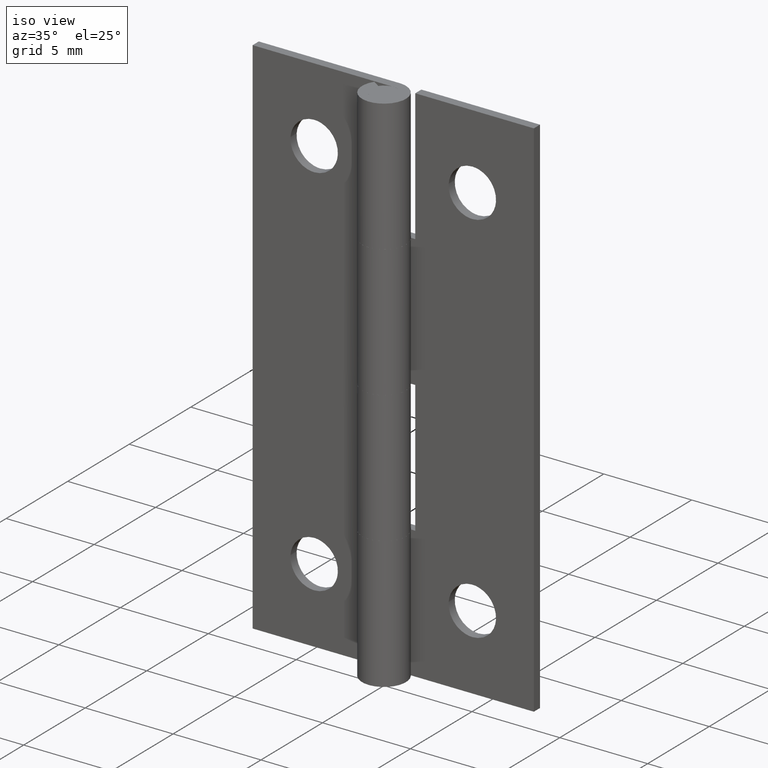
[diagram: clean part render]
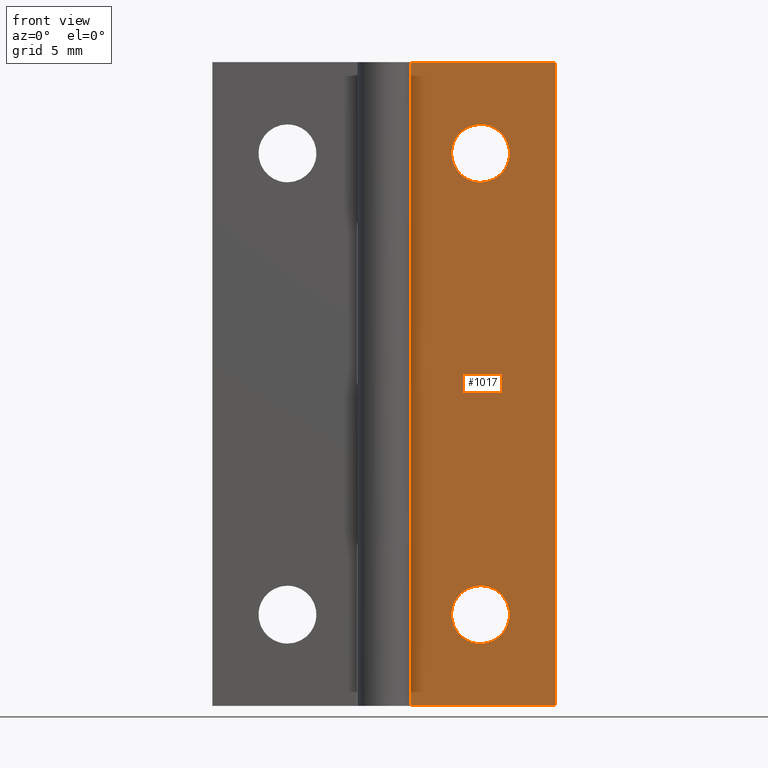
[diagram: tour spotlight — one face highlighted and labeled with its STEP entity id]
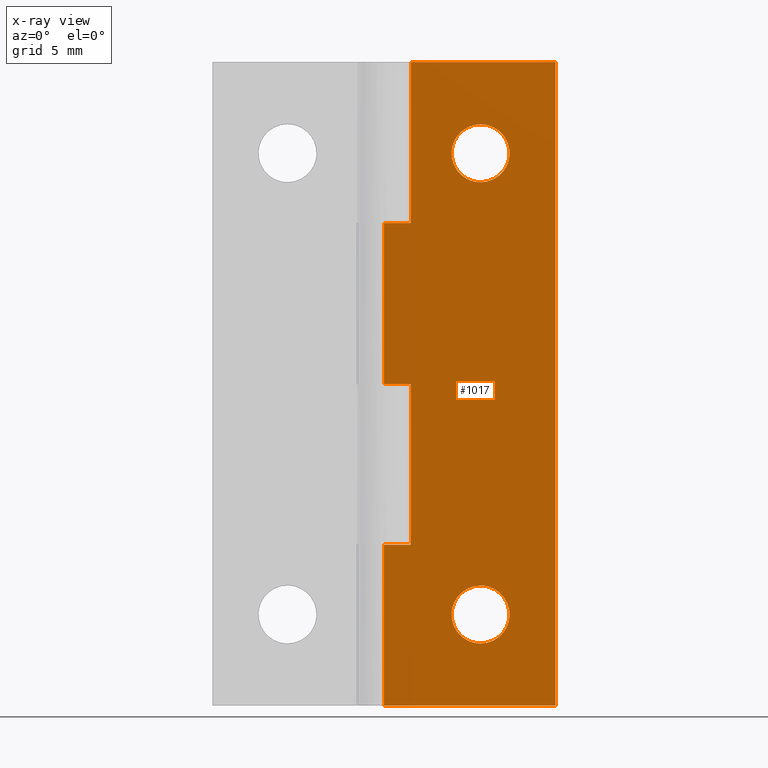
[diagram: x-ray of the same camera — body ghosted, this tour face saturated]
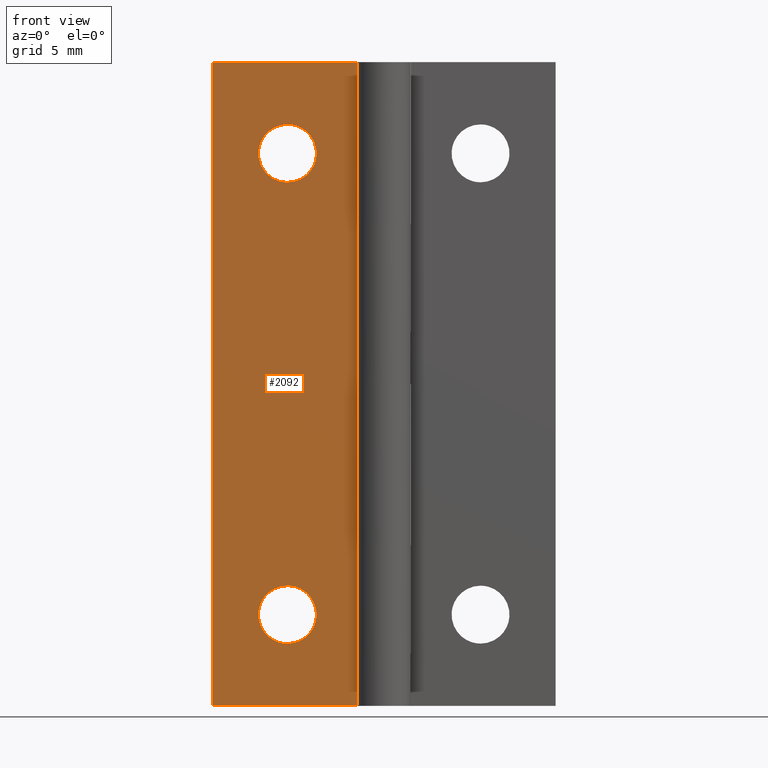
[diagram: tour spotlight — one face highlighted and labeled with its STEP entity id]
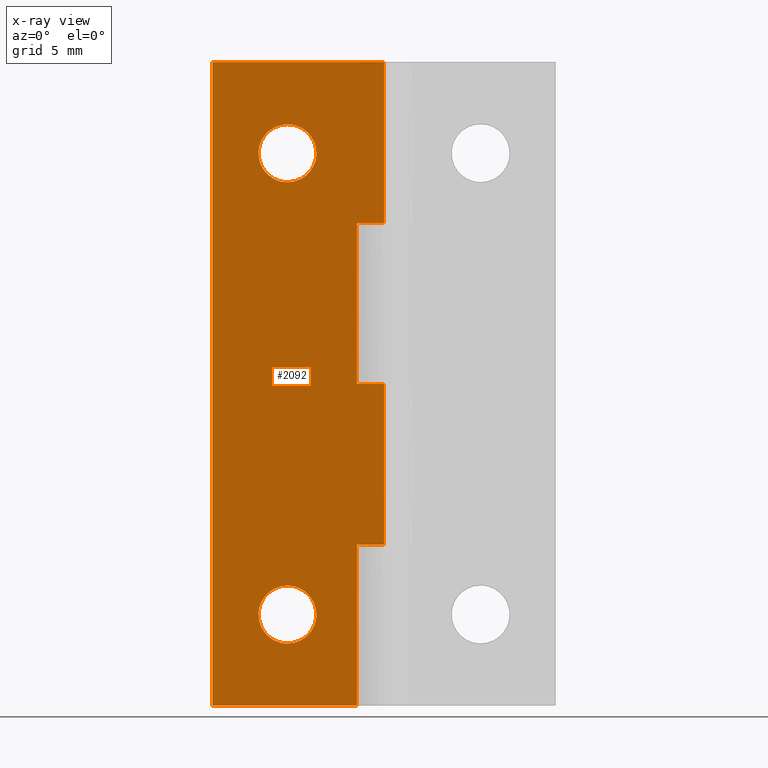
[diagram: x-ray of the same camera — body ghosted, this tour face saturated]
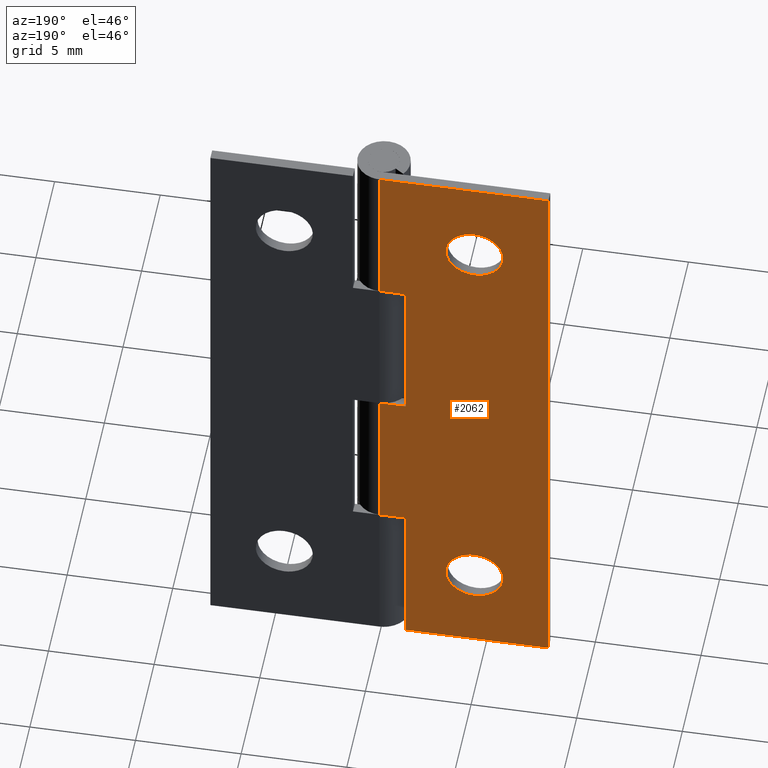
[diagram: tour spotlight — one face highlighted and labeled with its STEP entity id]
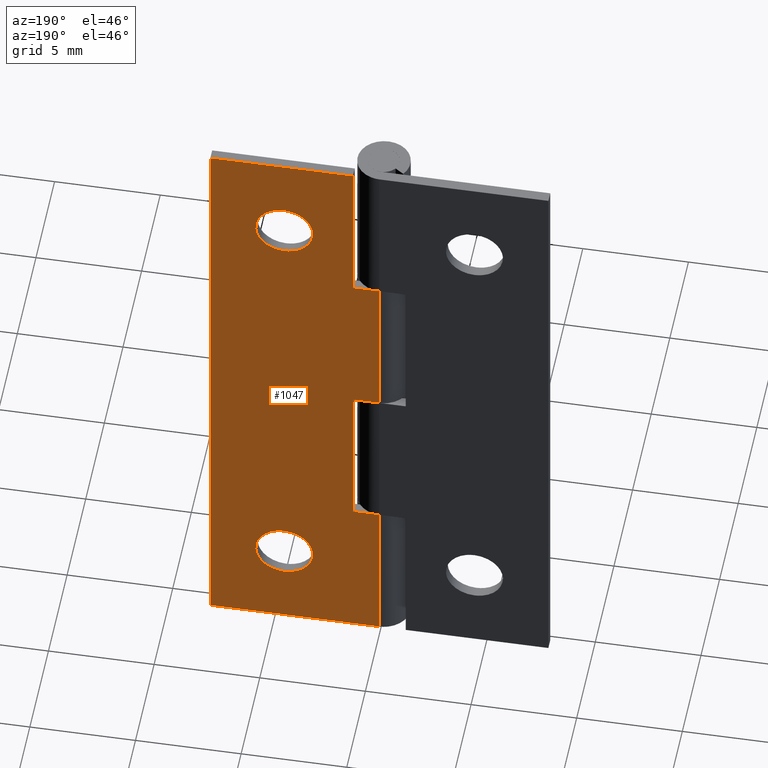
[diagram: tour spotlight — one face highlighted and labeled with its STEP entity id]
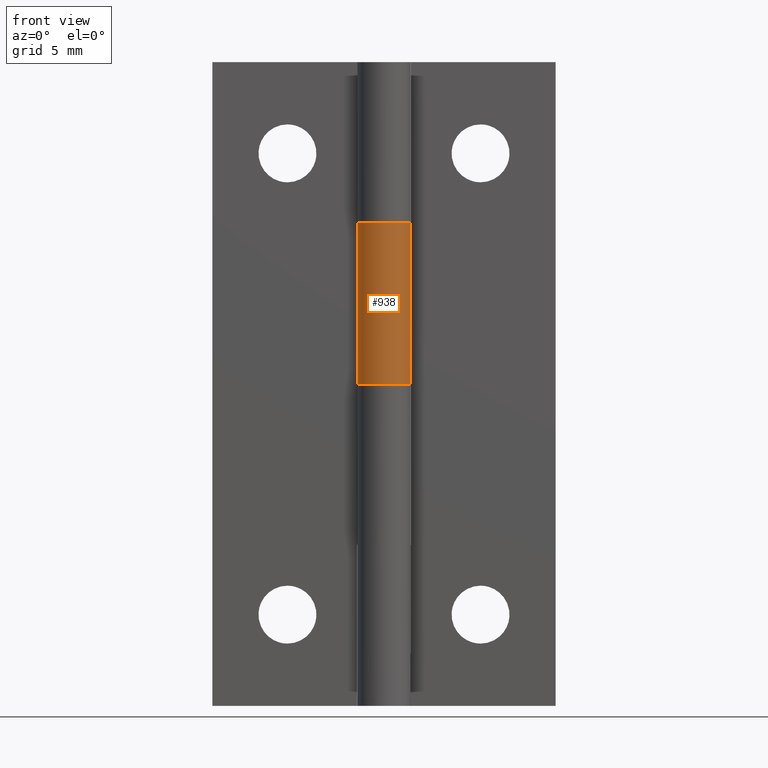
[diagram: tour spotlight — one face highlighted and labeled with its STEP entity id]
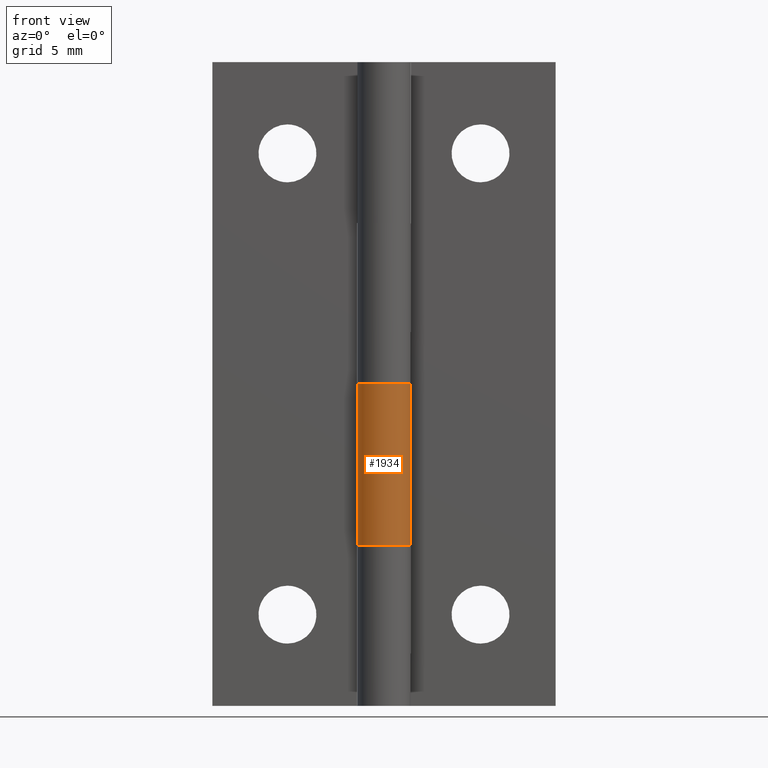
[diagram: tour spotlight — one face highlighted and labeled with its STEP entity id]
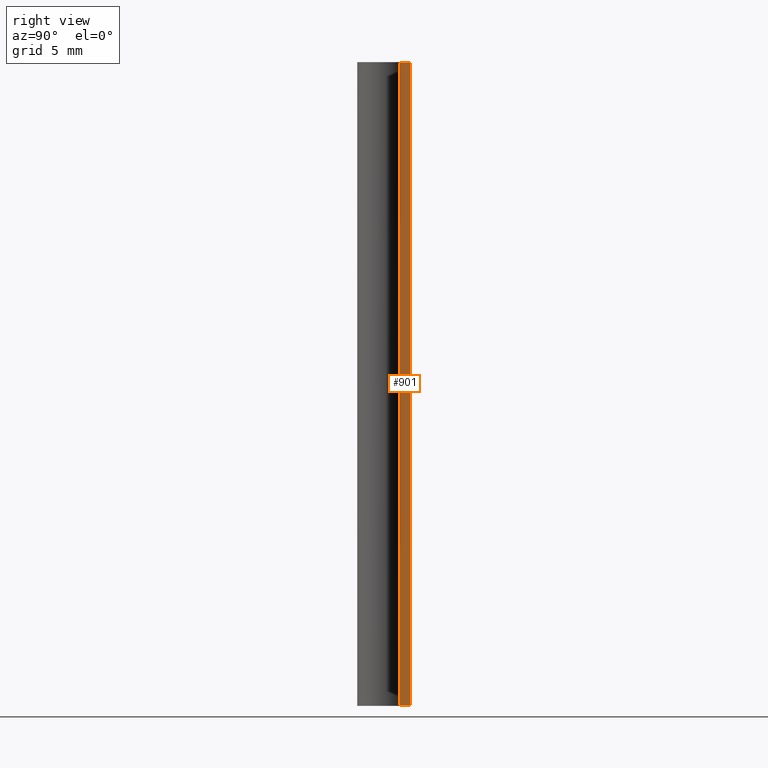
[diagram: tour spotlight — one face highlighted and labeled with its STEP entity id]
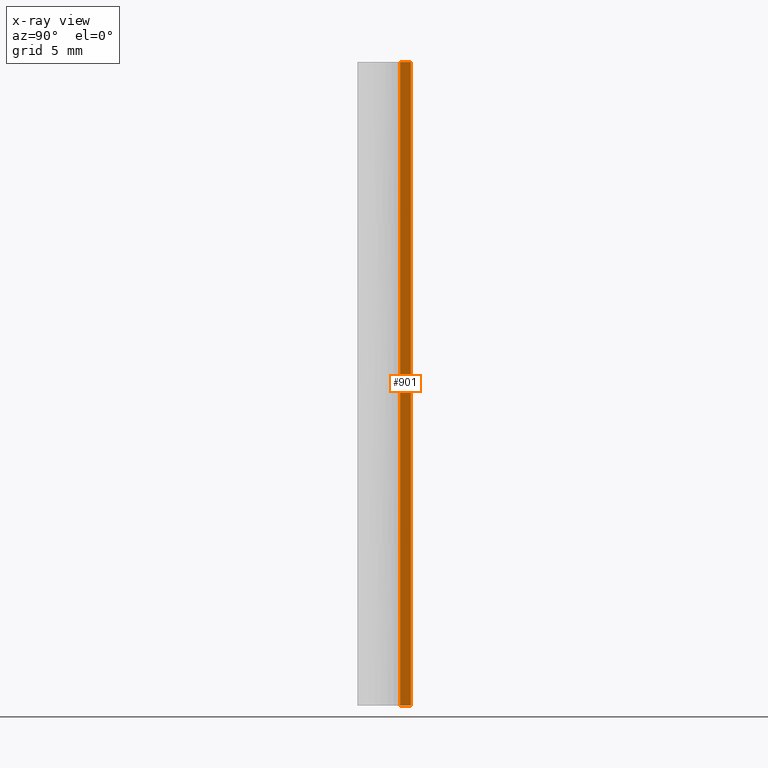
[diagram: x-ray of the same camera — body ghosted, this tour face saturated]
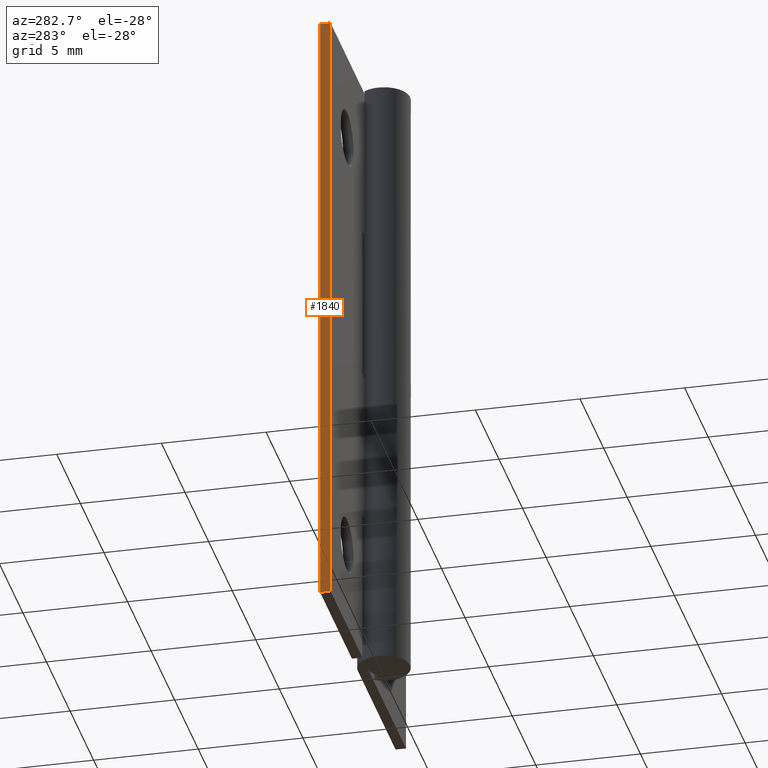
[diagram: tour spotlight — one face highlighted and labeled with its STEP entity id]
A machine part: a face-by-face anatomy tour. The part has 44 B-rep faces; the first image is the clean iso view, then the 8 largest visible faces are spotlighted one at a time (largest first), each with its STEP entity span.

Face 1 — front view, entity #1017. An x-ray twin of the same camera follows (body ghosted, this face saturated) — the face is partly hidden behind the body. In plain terms, the highlighted face is a freeform B-spline surface patch.
Definition (entity closure, byte-faithful):
#62=CARTESIAN_POINT('',(4.500000000000000,0.750000000000028,27.100000000000001));
#63=VERTEX_POINT('',#62);
#64=CARTESIAN_POINT('',(3.154161599465238,0.750000000000028,25.855919779295629));
#65=VERTEX_POINT('',#64);
#66=CARTESIAN_POINT('',(4.500000000000000,0.750000000000028,27.100000000000001));
#67=CARTESIAN_POINT('',(3.252072836378679,0.750000000000028,27.100000000000001));
#68=CARTESIAN_POINT('',(3.154161599465238,0.750000000000028,25.855919779295618));
#76=(BOUNDED_CURVE()B_SPLINE_CURVE(2,(#66,#67,#68),.UNSPECIFIED.,.F.,.U.)B_SPLINE_CURVE_WITH_KNOTS((3,3),(0.0,0.236331300616709),.UNSPECIFIED.)CURVE()GEOMETRIC_REPRESENTATION_ITEM()RATIONAL_B_SPLINE_CURVE((1.0,0.723120658624010,0.969723356138304))REPRESENTATION_ITEM(''));
#77=EDGE_CURVE('',#63,#65,#76,.T.);
#118=CARTESIAN_POINT('',(5.845838400534762,0.750000000000028,25.644080220704382));
#119=VERTEX_POINT('',#118);
#125=CARTESIAN_POINT('',(5.845838400534762,0.750000000000028,25.644080220704378));
#126=CARTESIAN_POINT('',(5.850000000000001,0.750000000000028,25.696958355476323));
#127=CARTESIAN_POINT('',(5.850000000000000,0.750000000000028,25.750000000000000));
#128=CARTESIAN_POINT('',(5.850000000000000,0.750000000000028,27.100000000000001));
#129=CARTESIAN_POINT('',(4.500000000000000,0.750000000000028,27.100000000000001));
#137=(BOUNDED_CURVE()B_SPLINE_CURVE(2,(#125,#126,#127,#128,#129),.UNSPECIFIED.,.F.,.U.)B_SPLINE_CURVE_WITH_KNOTS((3,2,3),(0.736331300616710,0.750000000000000,1.0),.UNSPECIFIED.)CURVE()GEOMETRIC_REPRESENTATION_ITEM()RATIONAL_B_SPLINE_CURVE((0.969723356138305,0.983986122562538,1.0,0.707106781186548,1.0))REPRESENTATION_ITEM(''));
#138=EDGE_CURVE('',#119,#63,#137,.T.);
#161=CARTESIAN_POINT('',(4.500000000000000,0.750000000000028,24.399999999999999));
#162=VERTEX_POINT('',#161);
#163=CARTESIAN_POINT('',(3.154161599465238,0.750000000000028,25.855919779295629));
#164=CARTESIAN_POINT('',(3.149999999999999,0.750000000000028,25.803041644523685));
#165=CARTESIAN_POINT('',(3.150000000000000,0.750000000000028,25.750000000000000));
#166=CARTESIAN_POINT('',(3.149999999999999,0.750000000000028,24.400000000000002));
#167=CARTESIAN_POINT('',(4.500000000000000,0.750000000000028,24.399999999999999));
#175=(BOUNDED_CURVE()B_SPLINE_CURVE(2,(#163,#164,#165,#166,#167),.UNSPECIFIED.,.F.,.U.)B_SPLINE_CURVE_WITH_KNOTS((3,2,3),(0.236331300616709,0.250000000000000,0.500000000000000),.UNSPECIFIED.)CURVE()GEOMETRIC_REPRESENTATION_ITEM()RATIONAL_B_SPLINE_CURVE((0.969723356138304,0.983986122562538,1.0,0.707106781186548,1.0))REPRESENTATION_ITEM(''));
#176=EDGE_CURVE('',#65,#162,#175,.T.);
#178=CARTESIAN_POINT('',(4.500000000000000,0.750000000000028,24.399999999999999));
#179=CARTESIAN_POINT('',(5.747927163621328,0.750000000000028,24.400000000000002));
#180=CARTESIAN_POINT('',(5.845838400534762,0.750000000000028,25.644080220704375));
#188=(BOUNDED_CURVE()B_SPLINE_CURVE(2,(#178,#179,#180),.UNSPECIFIED.,.F.,.U.)B_SPLINE_CURVE_WITH_KNOTS((3,3),(0.500000000000000,0.736331300616710),.UNSPECIFIED.)CURVE()GEOMETRIC_REPRESENTATION_ITEM()RATIONAL_B_SPLINE_CURVE((1.0,0.723120658624009,0.969723356138306))REPRESENTATION_ITEM(''));
#189=EDGE_CURVE('',#162,#119,#188,.T.);
#244=CARTESIAN_POINT('',(4.500000000000000,0.750000000000028,5.600000000000001));
#245=VERTEX_POINT('',#244);
#246=CARTESIAN_POINT('',(3.154161599465238,0.750000000000028,4.355919779295624));
#247=VERTEX_POINT('',#246);
#248=CARTESIAN_POINT('',(4.500000000000000,0.750000000000028,5.600000000000001));
#249=CARTESIAN_POINT('',(3.252072836378676,0.750000000000028,5.600000000000001));
#250=CARTESIAN_POINT('',(3.154161599465238,0.750000000000028,4.355919779295624));
#258=(BOUNDED_CURVE()B_SPLINE_CURVE(2,(#248,#249,#250),.UNSPECIFIED.,.F.,.U.)B_SPLINE_CURVE_WITH_KNOTS((3,3),(0.0,0.236331300616710),.UNSPECIFIED.)CURVE()GEOMETRIC_REPRESENTATION_ITEM()RATIONAL_B_SPLINE_CURVE((1.0,0.723120658624009,0.969723356138305))REPRESENTATION_ITEM(''));
#259=EDGE_CURVE('',#245,#247,#258,.T.);
#300=CARTESIAN_POINT('',(5.845838400534761,0.750000000000028,4.144080220704376));
#301=VERTEX_POINT('',#300);
#307=CARTESIAN_POINT('',(5.845838400534761,0.750000000000028,4.144080220704377));
#308=CARTESIAN_POINT('',(5.850000000000000,0.750000000000028,4.196958355476320));
#309=CARTESIAN_POINT('',(5.850000000000000,0.750000000000028,4.250000000000000));
#310=CARTESIAN_POINT('',(5.850000000000000,0.750000000000028,5.600000000000001));
#311=CARTESIAN_POINT('',(4.500000000000000,0.750000000000028,5.600000000000001));
#319=(BOUNDED_CURVE()B_SPLINE_CURVE(2,(#307,#308,#309,#310,#311),.UNSPECIFIED.,.F.,.U.)B_SPLINE_CURVE_WITH_KNOTS((3,2,3),(0.736331300616709,0.750000000000000,1.0),.UNSPECIFIED.)CURVE()GEOMETRIC_REPRESENTATION_ITEM()RATIONAL_B_SPLINE_CURVE((0.969723356138305,0.983986122562538,1.0,0.707106781186548,1.0))REPRESENTATION_ITEM(''));
#320=EDGE_CURVE('',#301,#245,#319,.T.);
#343=CARTESIAN_POINT('',(4.500000000000000,0.750000000000028,2.900000000000000));
#344=VERTEX_POINT('',#343);
#345=CARTESIAN_POINT('',(3.154161599465238,0.750000000000028,4.355919779295624));
#346=CARTESIAN_POINT('',(3.150000000000000,0.750000000000028,4.303041644523680));
#347=CARTESIAN_POINT('',(3.150000000000000,0.750000000000028,4.250000000000000));
#348=CARTESIAN_POINT('',(3.149999999999999,0.750000000000028,2.900000000000000));
#349=CARTESIAN_POINT('',(4.500000000000000,0.750000000000028,2.900000000000000));
#357=(BOUNDED_CURVE()B_SPLINE_CURVE(2,(#345,#346,#347,#348,#349),.UNSPECIFIED.,.F.,.U.)B_SPLINE_CURVE_WITH_KNOTS((3,2,3),(0.236331300616709,0.250000000000000,0.500000000000000),.UNSPECIFIED.)CURVE()GEOMETRIC_REPRESENTATION_ITEM()RATIONAL_B_SPLINE_CURVE((0.969723356138305,0.983986122562538,1.0,0.707106781186548,1.0))REPRESENTATION_ITEM(''));
#358=EDGE_CURVE('',#247,#344,#357,.T.);
#360=CARTESIAN_POINT('',(4.500000000000000,0.750000000000028,2.900000000000000));
#361=CARTESIAN_POINT('',(5.747927163621328,0.750000000000028,2.900000000000000));
#362=CARTESIAN_POINT('',(5.845838400534761,0.750000000000028,4.144080220704376));
#370=(BOUNDED_CURVE()B_SPLINE_CURVE(2,(#360,#361,#362),.UNSPECIFIED.,.F.,.U.)B_SPLINE_CURVE_WITH_KNOTS((3,3),(0.500000000000000,0.736331300616710),.UNSPECIFIED.)CURVE()GEOMETRIC_REPRESENTATION_ITEM()RATIONAL_B_SPLINE_CURVE((1.0,0.723120658624009,0.969723356138306))REPRESENTATION_ITEM(''));
#371=EDGE_CURVE('',#344,#301,#370,.T.);
#443=CARTESIAN_POINT('',(0.0,0.750000000000000,22.500000000000000));
#444=VERTEX_POINT('',#443);
#464=CARTESIAN_POINT('',(1.250000000000000,0.750000000000028,22.500000000000000));
#465=VERTEX_POINT('',#464);
#466=CARTESIAN_POINT('',(0.0,0.750000000000000,22.500000000000000));
#467=CARTESIAN_POINT('',(1.250000000000000,0.750000000000028,22.500000000000000));
#468=QUASI_UNIFORM_CURVE('',1,(#466,#467),.UNSPECIFIED.,.F.,.U.);
#469=EDGE_CURVE('',#444,#465,#468,.T.);
#491=CARTESIAN_POINT('',(1.250000000000000,0.750000000000000,30.0));
#492=VERTEX_POINT('',#491);
#493=CARTESIAN_POINT('',(1.250000000000000,0.750000000000028,22.500000000000000));
#494=CARTESIAN_POINT('',(1.250000000000000,0.750000000000000,30.0));
#495=QUASI_UNIFORM_CURVE('',1,(#493,#494),.UNSPECIFIED.,.F.,.U.);
#496=EDGE_CURVE('',#465,#492,#495,.T.);
#519=CARTESIAN_POINT('',(0.0,0.750000000000000,7.500000000000000));
#520=VERTEX_POINT('',#519);
#521=CARTESIAN_POINT('',(1.250000000000000,0.750000000000028,7.500000000000000));
#522=VERTEX_POINT('',#521);
#523=CARTESIAN_POINT('',(0.0,0.750000000000000,7.500000000000000));
#524=CARTESIAN_POINT('',(1.250000000000000,0.750000000000028,7.500000000000000));
#525=QUASI_UNIFORM_CURVE('',1,(#523,#524),.UNSPECIFIED.,.F.,.U.);
#526=EDGE_CURVE('',#520,#522,#525,.T.);
#597=CARTESIAN_POINT('',(1.250000000000000,0.750000000000028,15.0));
#598=VERTEX_POINT('',#597);
#599=CARTESIAN_POINT('',(1.250000000000000,0.750000000000028,7.500000000000000));
#600=CARTESIAN_POINT('',(1.250000000000000,0.750000000000028,15.0));
#601=QUASI_UNIFORM_CURVE('',1,(#599,#600),.UNSPECIFIED.,.F.,.U.);
#602=EDGE_CURVE('',#522,#598,#601,.T.);
#654=CARTESIAN_POINT('',(0.0,0.750000000000000,15.0));
#655=VERTEX_POINT('',#654);
#656=CARTESIAN_POINT('',(1.250000000000000,0.750000000000028,15.0));
#657=CARTESIAN_POINT('',(0.0,0.750000000000000,15.0));
#658=QUASI_UNIFORM_CURVE('',1,(#656,#657),.UNSPECIFIED.,.F.,.U.);
#659=EDGE_CURVE('',#598,#655,#658,.T.);
#704=CARTESIAN_POINT('',(8.0,0.750000000000000,0.0));
#705=VERTEX_POINT('',#704);
#711=CARTESIAN_POINT('',(0.0,0.750000000000000,0.0));
#712=VERTEX_POINT('',#711);
#713=CARTESIAN_POINT('',(8.0,0.750000000000000,0.0));
#714=CARTESIAN_POINT('',(0.0,0.750000000000000,0.0));
#715=QUASI_UNIFORM_CURVE('',1,(#713,#714),.UNSPECIFIED.,.F.,.U.);
#716=EDGE_CURVE('',#705,#712,#715,.T.);
#781=CARTESIAN_POINT('',(8.0,0.750000000000000,30.0));
#782=VERTEX_POINT('',#781);
#783=CARTESIAN_POINT('',(8.0,0.750000000000000,30.0));
#784=CARTESIAN_POINT('',(1.250000000000000,0.750000000000000,30.0));
#785=QUASI_UNIFORM_CURVE('',1,(#783,#784),.UNSPECIFIED.,.F.,.U.);
#786=EDGE_CURVE('',#782,#492,#785,.T.);
#871=CARTESIAN_POINT('',(0.0,0.750000000000000,7.500000000000000));
#872=CARTESIAN_POINT('',(0.0,0.750000000000000,0.0));
#873=QUASI_UNIFORM_CURVE('',1,(#871,#872),.UNSPECIFIED.,.F.,.U.);
#874=EDGE_CURVE('',#520,#712,#873,.T.);
#894=CARTESIAN_POINT('',(8.0,0.750000000000000,30.0));
#895=CARTESIAN_POINT('',(8.0,0.750000000000000,0.0));
#896=QUASI_UNIFORM_CURVE('',1,(#894,#895),.UNSPECIFIED.,.F.,.U.);
#897=EDGE_CURVE('',#782,#705,#896,.T.);
#977=CARTESIAN_POINT('',(0.0,0.750000000000000,22.500000000000000));
#978=CARTESIAN_POINT('',(0.0,0.750000000000000,15.0));
#979=QUASI_UNIFORM_CURVE('',1,(#977,#978),.UNSPECIFIED.,.F.,.U.);
#980=EDGE_CURVE('',#444,#655,#979,.T.);
#988=CARTESIAN_POINT('',(-0.399599984494448,0.750000000000000,31.498499941854181));
#989=CARTESIAN_POINT('',(-0.399599984494448,0.750000000000000,-1.498500746516883));
#990=CARTESIAN_POINT('',(8.399600199071170,0.750000000000000,31.498499941854181));
#991=CARTESIAN_POINT('',(8.399600199071170,0.750000000000000,-1.498500746516883));
#992=B_SPLINE_SURFACE_WITH_KNOTS('',1,1,((#988,#990),(#989,#991)),.UNSPECIFIED.,.F.,.F.,.U.,(2,2),(2,2),(0.0,32.997000688371060),(0.0,8.799200183565617),.UNSPECIFIED.);
#993=ORIENTED_EDGE('',*,*,#496,.F.);
#994=ORIENTED_EDGE('',*,*,#469,.F.);
#995=ORIENTED_EDGE('',*,*,#980,.T.);
#996=ORIENTED_EDGE('',*,*,#659,.F.);
#997=ORIENTED_EDGE('',*,*,#602,.F.);
#998=ORIENTED_EDGE('',*,*,#526,.F.);
#999=ORIENTED_EDGE('',*,*,#874,.T.);
#1000=ORIENTED_EDGE('',*,*,#716,.F.);
#1001=ORIENTED_EDGE('',*,*,#897,.F.);
#1002=ORIENTED_EDGE('',*,*,#786,.T.);
#1003=EDGE_LOOP('',(#993,#994,#995,#996,#997,#998,#999,#1000,#1001,#1002));
#1004=FACE_OUTER_BOUND('',#1003,.T.);
#1005=ORIENTED_EDGE('',*,*,#371,.F.);
#1006=ORIENTED_EDGE('',*,*,#358,.F.);
#1007=ORIENTED_EDGE('',*,*,#259,.F.);
#1008=ORIENTED_EDGE('',*,*,#320,.F.);
#1009=EDGE_LOOP('',(#1005,#1006,#1007,#1008));
#1010=FACE_BOUND('',#1009,.T.);
#1011=ORIENTED_EDGE('',*,*,#189,.F.);
#1012=ORIENTED_EDGE('',*,*,#176,.F.);
#1013=ORIENTED_EDGE('',*,*,#77,.F.);
#1014=ORIENTED_EDGE('',*,*,#138,.F.);
#1015=EDGE_LOOP('',(#1011,#1012,#1013,#1014));
#1016=FACE_BOUND('',#1015,.T.);
#1017=ADVANCED_FACE('',(#1004,#1010,#1016),#992,.T.);

Face 2 — front view, entity #2092. An x-ray twin of the same camera follows (body ghosted, this face saturated) — the face is partly hidden behind the body. In plain terms, the highlighted face is a freeform B-spline surface patch.
Definition (entity closure, byte-faithful):
#1141=CARTESIAN_POINT('',(-3.154161599465238,0.750000000000028,25.644080220704382));
#1142=VERTEX_POINT('',#1141);
#1148=CARTESIAN_POINT('',(-4.500000000000000,0.750000000000028,27.100000000000001));
#1149=VERTEX_POINT('',#1148);
#1150=CARTESIAN_POINT('',(-3.154161599465238,0.750000000000028,25.644080220704378));
#1151=CARTESIAN_POINT('',(-3.150000000000000,0.750000000000028,25.696958355476319));
#1152=CARTESIAN_POINT('',(-3.150000000000000,0.750000000000028,25.750000000000000));
#1153=CARTESIAN_POINT('',(-3.149999999999999,0.750000000000028,27.100000000000001));
#1154=CARTESIAN_POINT('',(-4.500000000000000,0.750000000000028,27.100000000000001));
#1162=(BOUNDED_CURVE()B_SPLINE_CURVE(2,(#1150,#1151,#1152,#1153,#1154),.UNSPECIFIED.,.F.,.U.)B_SPLINE_CURVE_WITH_KNOTS((3,2,3),(0.736331300616709,0.750000000000000,1.0),.UNSPECIFIED.)CURVE()GEOMETRIC_REPRESENTATION_ITEM()RATIONAL_B_SPLINE_CURVE((0.969723356138305,0.983986122562538,1.0,0.707106781186548,1.0))REPRESENTATION_ITEM(''));
#1163=EDGE_CURVE('',#1142,#1149,#1162,.T.);
#1165=CARTESIAN_POINT('',(-5.845838400534761,0.750000000000028,25.855919779295629));
#1166=VERTEX_POINT('',#1165);
#1167=CARTESIAN_POINT('',(-4.500000000000000,0.750000000000028,27.100000000000001));
#1168=CARTESIAN_POINT('',(-5.747927163621321,0.750000000000028,27.099999999999994));
#1169=CARTESIAN_POINT('',(-5.845838400534762,0.750000000000028,25.855919779295622));
#1177=(BOUNDED_CURVE()B_SPLINE_CURVE(2,(#1167,#1168,#1169),.UNSPECIFIED.,.F.,.U.)B_SPLINE_CURVE_WITH_KNOTS((3,3),(0.0,0.236331300616709),.UNSPECIFIED.)CURVE()GEOMETRIC_REPRESENTATION_ITEM()RATIONAL_B_SPLINE_CURVE((1.0,0.723120658624010,0.969723356138304))REPRESENTATION_ITEM(''));
#1178=EDGE_CURVE('',#1149,#1166,#1177,.T.);
#1224=CARTESIAN_POINT('',(-4.500000000000000,0.750000000000028,24.399999999999999));
#1225=VERTEX_POINT('',#1224);
#1226=CARTESIAN_POINT('',(-5.845838400534761,0.750000000000028,25.855919779295629));
#1227=CARTESIAN_POINT('',(-5.850000000000000,0.750000000000028,25.803041644523681));
#1228=CARTESIAN_POINT('',(-5.850000000000000,0.750000000000028,25.750000000000000));
#1229=CARTESIAN_POINT('',(-5.850000000000000,0.750000000000028,24.400000000000002));
#1230=CARTESIAN_POINT('',(-4.500000000000000,0.750000000000028,24.399999999999999));
#1238=(BOUNDED_CURVE()B_SPLINE_CURVE(2,(#1226,#1227,#1228,#1229,#1230),.UNSPECIFIED.,.F.,.U.)B_SPLINE_CURVE_WITH_KNOTS((3,2,3),(0.236331300616709,0.250000000000000,0.500000000000000),.UNSPECIFIED.)CURVE()GEOMETRIC_REPRESENTATION_ITEM()RATIONAL_B_SPLINE_CURVE((0.969723356138304,0.983986122562538,1.0,0.707106781186548,1.0))REPRESENTATION_ITEM(''));
#1239=EDGE_CURVE('',#1166,#1225,#1238,.T.);
#1241=CARTESIAN_POINT('',(-4.500000000000000,0.750000000000028,24.399999999999999));
#1242=CARTESIAN_POINT('',(-3.252072836378670,0.750000000000028,24.400000000000002));
#1243=CARTESIAN_POINT('',(-3.154161599465238,0.750000000000028,25.644080220704375));
#1251=(BOUNDED_CURVE()B_SPLINE_CURVE(2,(#1241,#1242,#1243),.UNSPECIFIED.,.F.,.U.)B_SPLINE_CURVE_WITH_KNOTS((3,3),(0.500000000000000,0.736331300616710),.UNSPECIFIED.)CURVE()GEOMETRIC_REPRESENTATION_ITEM()RATIONAL_B_SPLINE_CURVE((1.0,0.723120658624009,0.969723356138306))REPRESENTATION_ITEM(''));
#1252=EDGE_CURVE('',#1225,#1142,#1251,.T.);
#1323=CARTESIAN_POINT('',(-3.154161599465238,0.750000000000028,4.144080220704376));
#1324=VERTEX_POINT('',#1323);
#1330=CARTESIAN_POINT('',(-4.500000000000000,0.750000000000028,5.600000000000001));
#1331=VERTEX_POINT('',#1330);
#1332=CARTESIAN_POINT('',(-3.154161599465238,0.750000000000028,4.144080220704377));
#1333=CARTESIAN_POINT('',(-3.150000000000000,0.750000000000028,4.196958355476320));
#1334=CARTESIAN_POINT('',(-3.150000000000000,0.750000000000028,4.250000000000000));
#1335=CARTESIAN_POINT('',(-3.149999999999999,0.750000000000028,5.600000000000001));
#1336=CARTESIAN_POINT('',(-4.500000000000000,0.750000000000028,5.600000000000001));
#1344=(BOUNDED_CURVE()B_SPLINE_CURVE(2,(#1332,#1333,#1334,#1335,#1336),.UNSPECIFIED.,.F.,.U.)B_SPLINE_CURVE_WITH_KNOTS((3,2,3),(0.736331300616709,0.750000000000000,1.0),.UNSPECIFIED.)CURVE()GEOMETRIC_REPRESENTATION_ITEM()RATIONAL_B_SPLINE_CURVE((0.969723356138305,0.983986122562538,1.0,0.707106781186548,1.0))REPRESENTATION_ITEM(''));
#1345=EDGE_CURVE('',#1324,#1331,#1344,.T.);
#1347=CARTESIAN_POINT('',(-5.845838400534761,0.750000000000028,4.355919779295624));
#1348=VERTEX_POINT('',#1347);
#1349=CARTESIAN_POINT('',(-4.500000000000000,0.750000000000028,5.600000000000001));
#1350=CARTESIAN_POINT('',(-5.747927163621324,0.750000000000028,5.600000000000001));
#1351=CARTESIAN_POINT('',(-5.845838400534761,0.750000000000028,4.355919779295624));
#1359=(BOUNDED_CURVE()B_SPLINE_CURVE(2,(#1349,#1350,#1351),.UNSPECIFIED.,.F.,.U.)B_SPLINE_CURVE_WITH_KNOTS((3,3),(0.0,0.236331300616710),.UNSPECIFIED.)CURVE()GEOMETRIC_REPRESENTATION_ITEM()RATIONAL_B_SPLINE_CURVE((1.0,0.723120658624009,0.969723356138305))REPRESENTATION_ITEM(''));
#1360=EDGE_CURVE('',#1331,#1348,#1359,.T.);
#1406=CARTESIAN_POINT('',(-4.500000000000000,0.750000000000028,2.900000000000000));
#1407=VERTEX_POINT('',#1406);
#1408=CARTESIAN_POINT('',(-5.845838400534761,0.750000000000028,4.355919779295624));
#1409=CARTESIAN_POINT('',(-5.850000000000001,0.750000000000028,4.303041644523680));
#1410=CARTESIAN_POINT('',(-5.850000000000000,0.750000000000028,4.250000000000000));
#1411=CARTESIAN_POINT('',(-5.850000000000000,0.750000000000028,2.900000000000000));
#1412=CARTESIAN_POINT('',(-4.500000000000000,0.750000000000028,2.900000000000000));
#1420=(BOUNDED_CURVE()B_SPLINE_CURVE(2,(#1408,#1409,#1410,#1411,#1412),.UNSPECIFIED.,.F.,.U.)B_SPLINE_CURVE_WITH_KNOTS((3,2,3),(0.236331300616709,0.250000000000000,0.500000000000000),.UNSPECIFIED.)CURVE()GEOMETRIC_REPRESENTATION_ITEM()RATIONAL_B_SPLINE_CURVE((0.969723356138305,0.983986122562538,1.0,0.707106781186548,1.0))REPRESENTATION_ITEM(''));
#1421=EDGE_CURVE('',#1348,#1407,#1420,.T.);
#1423=CARTESIAN_POINT('',(-4.500000000000000,0.750000000000028,2.900000000000000));
#1424=CARTESIAN_POINT('',(-3.252072836378670,0.750000000000028,2.900000000000000));
#1425=CARTESIAN_POINT('',(-3.154161599465238,0.750000000000028,4.144080220704376));
#1433=(BOUNDED_CURVE()B_SPLINE_CURVE(2,(#1423,#1424,#1425),.UNSPECIFIED.,.F.,.U.)B_SPLINE_CURVE_WITH_KNOTS((3,3),(0.500000000000000,0.736331300616710),.UNSPECIFIED.)CURVE()GEOMETRIC_REPRESENTATION_ITEM()RATIONAL_B_SPLINE_CURVE((1.0,0.723120658624009,0.969723356138306))REPRESENTATION_ITEM(''));
#1434=EDGE_CURVE('',#1407,#1324,#1433,.T.);
#1458=CARTESIAN_POINT('',(-1.250000000000000,0.750000000000028,22.500000000000000));
#1459=VERTEX_POINT('',#1458);
#1460=CARTESIAN_POINT('',(-1.250000000000000,0.750000000000028,15.0));
#1461=VERTEX_POINT('',#1460);
#1462=CARTESIAN_POINT('',(-1.250000000000000,0.750000000000028,22.500000000000000));
#1463=CARTESIAN_POINT('',(-1.250000000000000,0.750000000000028,15.0));
#1464=QUASI_UNIFORM_CURVE('',1,(#1462,#1463),.UNSPECIFIED.,.F.,.U.);
#1465=EDGE_CURVE('',#1459,#1461,#1464,.T.);
#1494=CARTESIAN_POINT('',(4.592274E-017,0.750000000000000,22.500000000000000));
#1495=VERTEX_POINT('',#1494);
#1496=CARTESIAN_POINT('',(4.592274E-017,0.750000000000000,22.500000000000000));
#1497=CARTESIAN_POINT('',(-1.250000000000000,0.750000000000028,22.500000000000000));
#1498=QUASI_UNIFORM_CURVE('',1,(#1496,#1497),.UNSPECIFIED.,.F.,.U.);
#1499=EDGE_CURVE('',#1495,#1459,#1498,.T.);
#1564=CARTESIAN_POINT('',(4.592274E-017,0.750000000000000,15.0));
#1565=VERTEX_POINT('',#1564);
#1566=CARTESIAN_POINT('',(-1.250000000000000,0.750000000000028,15.0));
#1567=CARTESIAN_POINT('',(4.592274E-017,0.750000000000000,15.0));
#1568=QUASI_UNIFORM_CURVE('',1,(#1566,#1567),.UNSPECIFIED.,.F.,.U.);
#1569=EDGE_CURVE('',#1461,#1565,#1568,.T.);
#1634=CARTESIAN_POINT('',(-1.250000000000000,0.750000000000028,7.500000000000000));
#1635=VERTEX_POINT('',#1634);
#1636=CARTESIAN_POINT('',(-1.250000000000000,0.750000000000000,0.0));
#1637=VERTEX_POINT('',#1636);
#1638=CARTESIAN_POINT('',(-1.250000000000000,0.750000000000028,7.500000000000000));
#1639=CARTESIAN_POINT('',(-1.250000000000000,0.750000000000000,0.0));
#1640=QUASI_UNIFORM_CURVE('',1,(#1638,#1639),.UNSPECIFIED.,.F.,.U.);
#1641=EDGE_CURVE('',#1635,#1637,#1640,.T.);
#1670=CARTESIAN_POINT('',(4.592274E-017,0.750000000000000,7.500000000000000));
#1671=VERTEX_POINT('',#1670);
#1672=CARTESIAN_POINT('',(4.592274E-017,0.750000000000000,7.500000000000000));
#1673=CARTESIAN_POINT('',(-1.250000000000000,0.750000000000028,7.500000000000000));
#1674=QUASI_UNIFORM_CURVE('',1,(#1672,#1673),.UNSPECIFIED.,.F.,.U.);
#1675=EDGE_CURVE('',#1671,#1635,#1674,.T.);
#1740=CARTESIAN_POINT('',(-8.0,0.750000000000000,30.0));
#1741=VERTEX_POINT('',#1740);
#1742=CARTESIAN_POINT('',(4.592274E-017,0.750000000000000,30.0));
#1743=VERTEX_POINT('',#1742);
#1744=CARTESIAN_POINT('',(-8.0,0.750000000000000,30.0));
#1745=CARTESIAN_POINT('',(4.592274E-017,0.750000000000000,30.0));
#1746=QUASI_UNIFORM_CURVE('',1,(#1744,#1745),.UNSPECIFIED.,.F.,.U.);
#1747=EDGE_CURVE('',#1741,#1743,#1746,.T.);
#1820=CARTESIAN_POINT('',(-8.0,0.750000000000000,0.0));
#1821=VERTEX_POINT('',#1820);
#1827=CARTESIAN_POINT('',(-8.0,0.750000000000000,30.0));
#1828=CARTESIAN_POINT('',(-8.0,0.750000000000000,0.0));
#1829=QUASI_UNIFORM_CURVE('',1,(#1827,#1828),.UNSPECIFIED.,.F.,.U.);
#1830=EDGE_CURVE('',#1741,#1821,#1829,.T.);
#1847=CARTESIAN_POINT('',(-8.0,0.750000000000000,0.0));
#1848=CARTESIAN_POINT('',(-1.250000000000000,0.750000000000000,0.0));
#1849=QUASI_UNIFORM_CURVE('',1,(#1847,#1848),.UNSPECIFIED.,.F.,.U.);
#1850=EDGE_CURVE('',#1821,#1637,#1849,.T.);
#1989=CARTESIAN_POINT('',(4.592274E-017,0.750000000000000,30.0));
#1990=CARTESIAN_POINT('',(4.592274E-017,0.750000000000000,22.500000000000000));
#1991=QUASI_UNIFORM_CURVE('',1,(#1989,#1990),.UNSPECIFIED.,.F.,.U.);
#1992=EDGE_CURVE('',#1743,#1495,#1991,.T.);
#2024=CARTESIAN_POINT('',(4.592274E-017,0.750000000000000,15.0));
#2025=CARTESIAN_POINT('',(4.592274E-017,0.750000000000000,7.500000000000000));
#2026=QUASI_UNIFORM_CURVE('',1,(#2024,#2025),.UNSPECIFIED.,.F.,.U.);
#2027=EDGE_CURVE('',#1565,#1671,#2026,.T.);
#2063=CARTESIAN_POINT('',(-8.399599984494447,0.750000000000000,-1.498499941854179));
#2064=CARTESIAN_POINT('',(-8.399599984494447,0.750000000000000,31.498500746516889));
#2065=CARTESIAN_POINT('',(0.399600199071169,0.750000000000000,-1.498499941854179));
#2066=CARTESIAN_POINT('',(0.399600199071169,0.750000000000000,31.498500746516889));
#2067=B_SPLINE_SURFACE_WITH_KNOTS('',1,1,((#2063,#2065),(#2064,#2066)),.UNSPECIFIED.,.F.,.F.,.U.,(2,2),(2,2),(0.0,32.997000688371067),(0.0,8.799200183565615),.UNSPECIFIED.);
#2068=ORIENTED_EDGE('',*,*,#1569,.F.);
#2069=ORIENTED_EDGE('',*,*,#1465,.F.);
#2070=ORIENTED_EDGE('',*,*,#1499,.F.);
#2071=ORIENTED_EDGE('',*,*,#1992,.F.);
#2072=ORIENTED_EDGE('',*,*,#1747,.F.);
#2073=ORIENTED_EDGE('',*,*,#1830,.T.);
#2074=ORIENTED_EDGE('',*,*,#1850,.T.);
#2075=ORIENTED_EDGE('',*,*,#1641,.F.);
#2076=ORIENTED_EDGE('',*,*,#1675,.F.);
#2077=ORIENTED_EDGE('',*,*,#2027,.F.);
#2078=EDGE_LOOP('',(#2068,#2069,#2070,#2071,#2072,#2073,#2074,#2075,#2076,#2077));
#2079=FACE_OUTER_BOUND('',#2078,.T.);
#2080=ORIENTED_EDGE('',*,*,#1434,.F.);
#2081=ORIENTED_EDGE('',*,*,#1421,.F.);
#2082=ORIENTED_EDGE('',*,*,#1360,.F.);
#2083=ORIENTED_EDGE('',*,*,#1345,.F.);
#2084=EDGE_LOOP('',(#2080,#2081,#2082,#2083));
#2085=FACE_BOUND('',#2084,.T.);
#2086=ORIENTED_EDGE('',*,*,#1252,.F.);
#2087=ORIENTED_EDGE('',*,*,#1239,.F.);
#2088=ORIENTED_EDGE('',*,*,#1178,.F.);
#2089=ORIENTED_EDGE('',*,*,#1163,.F.);
#2090=EDGE_LOOP('',(#2086,#2087,#2088,#2089));
#2091=FACE_BOUND('',#2090,.T.);
#2092=ADVANCED_FACE('',(#2079,#2085,#2091),#2067,.F.);

Face 3 — auxiliary view, entity #2062. In plain terms, the highlighted face is a freeform B-spline surface patch.
Definition (entity closure, byte-faithful):
#1107=CARTESIAN_POINT('',(-4.500000000000000,1.249999999999972,27.100000000000001));
#1108=VERTEX_POINT('',#1107);
#1109=CARTESIAN_POINT('',(-5.845838400534761,1.249999999999972,25.855919779295629));
#1110=VERTEX_POINT('',#1109);
#1111=CARTESIAN_POINT('',(-4.500000000000000,1.249999999999972,27.100000000000001));
#1112=CARTESIAN_POINT('',(-5.747927163621319,1.249999999999972,27.100000000000001));
#1113=CARTESIAN_POINT('',(-5.845838400534761,1.249999999999972,25.855919779295618));
#1121=(BOUNDED_CURVE()B_SPLINE_CURVE(2,(#1111,#1112,#1113),.UNSPECIFIED.,.F.,.U.)B_SPLINE_CURVE_WITH_KNOTS((3,3),(0.0,0.236331300616709),.UNSPECIFIED.)CURVE()GEOMETRIC_REPRESENTATION_ITEM()RATIONAL_B_SPLINE_CURVE((1.0,0.723120658624010,0.969723356138304))REPRESENTATION_ITEM(''));
#1122=EDGE_CURVE('',#1108,#1110,#1121,.T.);
#1124=CARTESIAN_POINT('',(-3.154161599465238,1.249999999999972,25.644080220704382));
#1125=VERTEX_POINT('',#1124);
#1126=CARTESIAN_POINT('',(-3.154161599465238,1.249999999999972,25.644080220704378));
#1127=CARTESIAN_POINT('',(-3.150000000000000,1.249999999999973,25.696958355476323));
#1128=CARTESIAN_POINT('',(-3.150000000000000,1.249999999999972,25.750000000000000));
#1129=CARTESIAN_POINT('',(-3.149999999999999,1.249999999999972,27.100000000000001));
#1130=CARTESIAN_POINT('',(-4.500000000000000,1.249999999999972,27.100000000000001));
#1138=(BOUNDED_CURVE()B_SPLINE_CURVE(2,(#1126,#1127,#1128,#1129,#1130),.UNSPECIFIED.,.F.,.U.)B_SPLINE_CURVE_WITH_KNOTS((3,2,3),(0.736331300616710,0.750000000000000,1.0),.UNSPECIFIED.)CURVE()GEOMETRIC_REPRESENTATION_ITEM()RATIONAL_B_SPLINE_CURVE((0.969723356138305,0.983986122562538,1.0,0.707106781186548,1.0))REPRESENTATION_ITEM(''));
#1139=EDGE_CURVE('',#1125,#1108,#1138,.T.);
#1206=CARTESIAN_POINT('',(-4.500000000000000,1.249999999999972,24.399999999999999));
#1207=VERTEX_POINT('',#1206);
#1208=CARTESIAN_POINT('',(-5.845838400534761,1.249999999999972,25.855919779295629));
#1209=CARTESIAN_POINT('',(-5.850000000000000,1.249999999999972,25.803041644523685));
#1210=CARTESIAN_POINT('',(-5.850000000000000,1.249999999999972,25.750000000000000));
#1211=CARTESIAN_POINT('',(-5.850000000000000,1.249999999999972,24.400000000000002));
#1212=CARTESIAN_POINT('',(-4.500000000000000,1.249999999999972,24.399999999999999));
#1220=(BOUNDED_CURVE()B_SPLINE_CURVE(2,(#1208,#1209,#1210,#1211,#1212),.UNSPECIFIED.,.F.,.U.)B_SPLINE_CURVE_WITH_KNOTS((3,2,3),(0.236331300616709,0.250000000000000,0.500000000000000),.UNSPECIFIED.)CURVE()GEOMETRIC_REPRESENTATION_ITEM()RATIONAL_B_SPLINE_CURVE((0.969723356138304,0.983986122562538,1.0,0.707106781186548,1.0))REPRESENTATION_ITEM(''));
#1221=EDGE_CURVE('',#1110,#1207,#1220,.T.);
#1255=CARTESIAN_POINT('',(-4.500000000000000,1.249999999999972,24.399999999999999));
#1256=CARTESIAN_POINT('',(-3.252072836378670,1.249999999999972,24.400000000000002));
#1257=CARTESIAN_POINT('',(-3.154161599465238,1.249999999999972,25.644080220704375));
#1265=(BOUNDED_CURVE()B_SPLINE_CURVE(2,(#1255,#1256,#1257),.UNSPECIFIED.,.F.,.U.)B_SPLINE_CURVE_WITH_KNOTS((3,3),(0.500000000000000,0.736331300616710),.UNSPECIFIED.)CURVE()GEOMETRIC_REPRESENTATION_ITEM()RATIONAL_B_SPLINE_CURVE((1.0,0.723120658624009,0.969723356138306))REPRESENTATION_ITEM(''));
#1266=EDGE_CURVE('',#1207,#1125,#1265,.T.);
#1289=CARTESIAN_POINT('',(-4.500000000000000,1.249999999999972,5.600000000000001));
#1290=VERTEX_POINT('',#1289);
#1291=CARTESIAN_POINT('',(-5.845838400534761,1.249999999999972,4.355919779295624));
#1292=VERTEX_POINT('',#1291);
#1293=CARTESIAN_POINT('',(-4.500000000000000,1.249999999999972,5.600000000000001));
#1294=CARTESIAN_POINT('',(-5.747927163621324,1.249999999999972,5.600000000000001));
#1295=CARTESIAN_POINT('',(-5.845838400534761,1.249999999999972,4.355919779295624));
#1303=(BOUNDED_CURVE()B_SPLINE_CURVE(2,(#1293,#1294,#1295),.UNSPECIFIED.,.F.,.U.)B_SPLINE_CURVE_WITH_KNOTS((3,3),(0.0,0.236331300616710),.UNSPECIFIED.)CURVE()GEOMETRIC_REPRESENTATION_ITEM()RATIONAL_B_SPLINE_CURVE((1.0,0.723120658624009,0.969723356138305))REPRESENTATION_ITEM(''));
#1304=EDGE_CURVE('',#1290,#1292,#1303,.T.);
#1306=CARTESIAN_POINT('',(-3.154161599465238,1.249999999999972,4.144080220704376));
#1307=VERTEX_POINT('',#1306);
#1308=CARTESIAN_POINT('',(-3.154161599465238,1.249999999999972,4.144080220704377));
#1309=CARTESIAN_POINT('',(-3.150000000000000,1.249999999999972,4.196958355476320));
#1310=CARTESIAN_POINT('',(-3.150000000000000,1.249999999999972,4.250000000000000));
#1311=CARTESIAN_POINT('',(-3.149999999999999,1.249999999999972,5.600000000000001));
#1312=CARTESIAN_POINT('',(-4.500000000000000,1.249999999999972,5.600000000000001));
#1320=(BOUNDED_CURVE()B_SPLINE_CURVE(2,(#1308,#1309,#1310,#1311,#1312),.UNSPECIFIED.,.F.,.U.)B_SPLINE_CURVE_WITH_KNOTS((3,2,3),(0.736331300616709,0.750000000000000,1.0),.UNSPECIFIED.)CURVE()GEOMETRIC_REPRESENTATION_ITEM()RATIONAL_B_SPLINE_CURVE((0.969723356138305,0.983986122562538,1.0,0.707106781186548,1.0))REPRESENTATION_ITEM(''));
#1321=EDGE_CURVE('',#1307,#1290,#1320,.T.);
#1388=CARTESIAN_POINT('',(-4.500000000000000,1.249999999999972,2.900000000000000));
#1389=VERTEX_POINT('',#1388);
#1390=CARTESIAN_POINT('',(-5.845838400534761,1.249999999999972,4.355919779295624));
#1391=CARTESIAN_POINT('',(-5.849999999999999,1.249999999999972,4.303041644523680));
#1392=CARTESIAN_POINT('',(-5.850000000000000,1.249999999999972,4.250000000000000));
#1393=CARTESIAN_POINT('',(-5.850000000000000,1.249999999999972,2.900000000000000));
#1394=CARTESIAN_POINT('',(-4.500000000000000,1.249999999999972,2.900000000000000));
#1402=(BOUNDED_CURVE()B_SPLINE_CURVE(2,(#1390,#1391,#1392,#1393,#1394),.UNSPECIFIED.,.F.,.U.)B_SPLINE_CURVE_WITH_KNOTS((3,2,3),(0.236331300616710,0.250000000000000,0.500000000000000),.UNSPECIFIED.)CURVE()GEOMETRIC_REPRESENTATION_ITEM()RATIONAL_B_SPLINE_CURVE((0.969723356138305,0.983986122562538,1.0,0.707106781186548,1.0))REPRESENTATION_ITEM(''));
#1403=EDGE_CURVE('',#1292,#1389,#1402,.T.);
#1437=CARTESIAN_POINT('',(-4.500000000000000,1.249999999999972,2.900000000000000));
#1438=CARTESIAN_POINT('',(-3.252072836378670,1.249999999999972,2.900000000000000));
#1439=CARTESIAN_POINT('',(-3.154161599465238,1.249999999999972,4.144080220704376));
#1447=(BOUNDED_CURVE()B_SPLINE_CURVE(2,(#1437,#1438,#1439),.UNSPECIFIED.,.F.,.U.)B_SPLINE_CURVE_WITH_KNOTS((3,3),(0.500000000000000,0.736331300616710),.UNSPECIFIED.)CURVE()GEOMETRIC_REPRESENTATION_ITEM()RATIONAL_B_SPLINE_CURVE((1.0,0.723120658624009,0.969723356138306))REPRESENTATION_ITEM(''));
#1448=EDGE_CURVE('',#1389,#1307,#1447,.T.);
#1467=CARTESIAN_POINT('',(-1.250000000000000,1.250000000000000,15.0));
#1468=VERTEX_POINT('',#1467);
#1474=CARTESIAN_POINT('',(-1.250000000000000,1.249999999999972,22.500000000000000));
#1475=VERTEX_POINT('',#1474);
#1476=CARTESIAN_POINT('',(-1.250000000000000,1.249999999999972,22.500000000000000));
#1477=CARTESIAN_POINT('',(-1.250000000000000,1.250000000000000,15.0));
#1478=QUASI_UNIFORM_CURVE('',1,(#1476,#1477),.UNSPECIFIED.,.F.,.U.);
#1479=EDGE_CURVE('',#1475,#1468,#1478,.T.);
#1502=CARTESIAN_POINT('',(0.0,1.249999999999972,22.500000000000000));
#1503=VERTEX_POINT('',#1502);
#1504=CARTESIAN_POINT('',(0.0,1.249999999999972,22.500000000000000));
#1505=CARTESIAN_POINT('',(-1.250000000000000,1.249999999999972,22.500000000000000));
#1506=QUASI_UNIFORM_CURVE('',1,(#1504,#1505),.UNSPECIFIED.,.F.,.U.);
#1507=EDGE_CURVE('',#1503,#1475,#1506,.T.);
#1599=CARTESIAN_POINT('',(0.0,1.249999999999972,15.0));
#1600=VERTEX_POINT('',#1599);
#1620=CARTESIAN_POINT('',(-1.250000000000000,1.250000000000000,15.0));
#1621=CARTESIAN_POINT('',(0.0,1.249999999999972,15.0));
#1622=QUASI_UNIFORM_CURVE('',1,(#1620,#1621),.UNSPECIFIED.,.F.,.U.);
#1623=EDGE_CURVE('',#1468,#1600,#1622,.T.);
#1643=CARTESIAN_POINT('',(-1.250000000000000,1.249999999999972,0.0));
#1644=VERTEX_POINT('',#1643);
#1650=CARTESIAN_POINT('',(-1.250000000000000,1.249999999999972,7.500000000000000));
#1651=VERTEX_POINT('',#1650);
#1652=CARTESIAN_POINT('',(-1.250000000000000,1.249999999999972,7.500000000000000));
#1653=CARTESIAN_POINT('',(-1.250000000000000,1.249999999999972,0.0));
#1654=QUASI_UNIFORM_CURVE('',1,(#1652,#1653),.UNSPECIFIED.,.F.,.U.);
#1655=EDGE_CURVE('',#1651,#1644,#1654,.T.);
#1678=CARTESIAN_POINT('',(0.0,1.249999999999972,7.500000000000000));
#1679=VERTEX_POINT('',#1678);
#1680=CARTESIAN_POINT('',(0.0,1.249999999999972,7.500000000000000));
#1681=CARTESIAN_POINT('',(-1.250000000000000,1.249999999999972,7.500000000000000));
#1682=QUASI_UNIFORM_CURVE('',1,(#1680,#1681),.UNSPECIFIED.,.F.,.U.);
#1683=EDGE_CURVE('',#1679,#1651,#1682,.T.);
#1777=CARTESIAN_POINT('',(7.653790E-017,1.250000000000000,30.0));
#1778=VERTEX_POINT('',#1777);
#1798=CARTESIAN_POINT('',(-8.0,1.250000000000000,30.0));
#1799=VERTEX_POINT('',#1798);
#1800=CARTESIAN_POINT('',(7.653790E-017,1.250000000000000,30.0));
#1801=CARTESIAN_POINT('',(-8.0,1.250000000000000,30.0));
#1802=QUASI_UNIFORM_CURVE('',1,(#1800,#1801),.UNSPECIFIED.,.F.,.U.);
#1803=EDGE_CURVE('',#1778,#1799,#1802,.T.);
#1818=CARTESIAN_POINT('',(-8.0,1.250000000000000,0.0));
#1819=VERTEX_POINT('',#1818);
#1833=CARTESIAN_POINT('',(-8.0,1.250000000000000,30.0));
#1834=CARTESIAN_POINT('',(-8.0,1.250000000000000,0.0));
#1835=QUASI_UNIFORM_CURVE('',1,(#1833,#1834),.UNSPECIFIED.,.F.,.U.);
#1836=EDGE_CURVE('',#1799,#1819,#1835,.T.);
#1853=CARTESIAN_POINT('',(-1.250000000000000,1.249999999999972,0.0));
#1854=CARTESIAN_POINT('',(-8.0,1.250000000000000,0.0));
#1855=QUASI_UNIFORM_CURVE('',1,(#1853,#1854),.UNSPECIFIED.,.F.,.U.);
#1856=EDGE_CURVE('',#1644,#1819,#1855,.T.);
#1884=CARTESIAN_POINT('',(7.653790E-017,1.250000000000000,30.0));
#1885=CARTESIAN_POINT('',(0.0,1.249999999999972,22.500000000000000));
#1886=QUASI_UNIFORM_CURVE('',1,(#1884,#1885),.UNSPECIFIED.,.F.,.U.);
#1887=EDGE_CURVE('',#1778,#1503,#1886,.T.);
#1927=CARTESIAN_POINT('',(0.0,1.249999999999972,15.0));
#1928=CARTESIAN_POINT('',(0.0,1.249999999999972,7.500000000000000));
#1929=QUASI_UNIFORM_CURVE('',1,(#1927,#1928),.UNSPECIFIED.,.F.,.U.);
#1930=EDGE_CURVE('',#1600,#1679,#1929,.T.);
#2033=CARTESIAN_POINT('',(-8.399599984494447,1.250000000000000,31.498499941854181));
#2034=CARTESIAN_POINT('',(-8.399599984494447,1.250000000000000,-1.498500746516883));
#2035=CARTESIAN_POINT('',(0.399600199071169,1.250000000000000,31.498499941854181));
#2036=CARTESIAN_POINT('',(0.399600199071169,1.250000000000000,-1.498500746516883));
#2037=B_SPLINE_SURFACE_WITH_KNOTS('',1,1,((#2033,#2035),(#2034,#2036)),.UNSPECIFIED.,.F.,.F.,.U.,(2,2),(2,2),(0.0,32.997000688371060),(0.0,8.799200183565615),.UNSPECIFIED.);
#2038=ORIENTED_EDGE('',*,*,#1623,.T.);
#2039=ORIENTED_EDGE('',*,*,#1930,.T.);
#2040=ORIENTED_EDGE('',*,*,#1683,.T.);
#2041=ORIENTED_EDGE('',*,*,#1655,.T.);
#2042=ORIENTED_EDGE('',*,*,#1856,.T.);
#2043=ORIENTED_EDGE('',*,*,#1836,.F.);
#2044=ORIENTED_EDGE('',*,*,#1803,.F.);
#2045=ORIENTED_EDGE('',*,*,#1887,.T.);
#2046=ORIENTED_EDGE('',*,*,#1507,.T.);
#2047=ORIENTED_EDGE('',*,*,#1479,.T.);
#2048=EDGE_LOOP('',(#2038,#2039,#2040,#2041,#2042,#2043,#2044,#2045,#2046,#2047));
#2049=FACE_OUTER_BOUND('',#2048,.T.);
#2050=ORIENTED_EDGE('',*,*,#1448,.T.);
#2051=ORIENTED_EDGE('',*,*,#1321,.T.);
#2052=ORIENTED_EDGE('',*,*,#1304,.T.);
#2053=ORIENTED_EDGE('',*,*,#1403,.T.);
#2054=EDGE_LOOP('',(#2050,#2051,#2052,#2053));
#2055=FACE_BOUND('',#2054,.T.);
#2056=ORIENTED_EDGE('',*,*,#1266,.T.);
#2057=ORIENTED_EDGE('',*,*,#1139,.T.);
#2058=ORIENTED_EDGE('',*,*,#1122,.T.);
#2059=ORIENTED_EDGE('',*,*,#1221,.T.);
#2060=EDGE_LOOP('',(#2056,#2057,#2058,#2059));
#2061=FACE_BOUND('',#2060,.T.);
#2062=ADVANCED_FACE('',(#2049,#2055,#2061),#2037,.F.);

Face 4 — auxiliary view, entity #1047. In plain terms, the highlighted face is a freeform B-spline surface patch.
Definition (entity closure, byte-faithful):
#79=CARTESIAN_POINT('',(3.154161599465238,1.249999999999972,25.855919779295629));
#80=VERTEX_POINT('',#79);
#86=CARTESIAN_POINT('',(4.500000000000000,1.249999999999972,27.100000000000001));
#87=VERTEX_POINT('',#86);
#88=CARTESIAN_POINT('',(4.500000000000000,1.249999999999972,27.100000000000001));
#89=CARTESIAN_POINT('',(3.252072836378678,1.249999999999972,27.099999999999994));
#90=CARTESIAN_POINT('',(3.154161599465238,1.249999999999972,25.855919779295622));
#98=(BOUNDED_CURVE()B_SPLINE_CURVE(2,(#88,#89,#90),.UNSPECIFIED.,.F.,.U.)B_SPLINE_CURVE_WITH_KNOTS((3,3),(0.0,0.236331300616709),.UNSPECIFIED.)CURVE()GEOMETRIC_REPRESENTATION_ITEM()RATIONAL_B_SPLINE_CURVE((1.0,0.723120658624010,0.969723356138304))REPRESENTATION_ITEM(''));
#99=EDGE_CURVE('',#87,#80,#98,.T.);
#101=CARTESIAN_POINT('',(5.845838400534761,1.249999999999972,25.644080220704382));
#102=VERTEX_POINT('',#101);
#103=CARTESIAN_POINT('',(5.845838400534761,1.249999999999973,25.644080220704378));
#104=CARTESIAN_POINT('',(5.850000000000000,1.249999999999972,25.696958355476319));
#105=CARTESIAN_POINT('',(5.850000000000000,1.249999999999972,25.750000000000000));
#106=CARTESIAN_POINT('',(5.850000000000000,1.249999999999972,27.100000000000001));
#107=CARTESIAN_POINT('',(4.500000000000000,1.249999999999972,27.100000000000001));
#115=(BOUNDED_CURVE()B_SPLINE_CURVE(2,(#103,#104,#105,#106,#107),.UNSPECIFIED.,.F.,.U.)B_SPLINE_CURVE_WITH_KNOTS((3,2,3),(0.736331300616709,0.750000000000000,1.0),.UNSPECIFIED.)CURVE()GEOMETRIC_REPRESENTATION_ITEM()RATIONAL_B_SPLINE_CURVE((0.969723356138305,0.983986122562538,1.0,0.707106781186548,1.0))REPRESENTATION_ITEM(''));
#116=EDGE_CURVE('',#102,#87,#115,.T.);
#192=CARTESIAN_POINT('',(4.500000000000000,1.249999999999972,24.399999999999999));
#193=VERTEX_POINT('',#192);
#194=CARTESIAN_POINT('',(4.500000000000000,1.249999999999972,24.399999999999999));
#195=CARTESIAN_POINT('',(5.747927163621328,1.249999999999972,24.400000000000002));
#196=CARTESIAN_POINT('',(5.845838400534761,1.249999999999972,25.644080220704375));
#204=(BOUNDED_CURVE()B_SPLINE_CURVE(2,(#194,#195,#196),.UNSPECIFIED.,.F.,.U.)B_SPLINE_CURVE_WITH_KNOTS((3,3),(0.500000000000000,0.736331300616710),.UNSPECIFIED.)CURVE()GEOMETRIC_REPRESENTATION_ITEM()RATIONAL_B_SPLINE_CURVE((1.0,0.723120658624009,0.969723356138306))REPRESENTATION_ITEM(''));
#205=EDGE_CURVE('',#193,#102,#204,.T.);
#207=CARTESIAN_POINT('',(3.154161599465238,1.249999999999972,25.855919779295629));
#208=CARTESIAN_POINT('',(3.150000000000000,1.249999999999972,25.803041644523681));
#209=CARTESIAN_POINT('',(3.150000000000000,1.249999999999972,25.750000000000000));
#210=CARTESIAN_POINT('',(3.149999999999999,1.249999999999972,24.400000000000002));
#211=CARTESIAN_POINT('',(4.500000000000000,1.249999999999972,24.399999999999999));
#219=(BOUNDED_CURVE()B_SPLINE_CURVE(2,(#207,#208,#209,#210,#211),.UNSPECIFIED.,.F.,.U.)B_SPLINE_CURVE_WITH_KNOTS((3,2,3),(0.236331300616709,0.250000000000000,0.500000000000000),.UNSPECIFIED.)CURVE()GEOMETRIC_REPRESENTATION_ITEM()RATIONAL_B_SPLINE_CURVE((0.969723356138304,0.983986122562538,1.0,0.707106781186548,1.0))REPRESENTATION_ITEM(''));
#220=EDGE_CURVE('',#80,#193,#219,.T.);
#261=CARTESIAN_POINT('',(3.154161599465238,1.249999999999972,4.355919779295624));
#262=VERTEX_POINT('',#261);
#268=CARTESIAN_POINT('',(4.500000000000000,1.249999999999972,5.600000000000001));
#269=VERTEX_POINT('',#268);
#270=CARTESIAN_POINT('',(4.500000000000000,1.249999999999972,5.600000000000001));
#271=CARTESIAN_POINT('',(3.252072836378676,1.249999999999972,5.600000000000001));
#272=CARTESIAN_POINT('',(3.154161599465238,1.249999999999972,4.355919779295624));
#280=(BOUNDED_CURVE()B_SPLINE_CURVE(2,(#270,#271,#272),.UNSPECIFIED.,.F.,.U.)B_SPLINE_CURVE_WITH_KNOTS((3,3),(0.0,0.236331300616710),.UNSPECIFIED.)CURVE()GEOMETRIC_REPRESENTATION_ITEM()RATIONAL_B_SPLINE_CURVE((1.0,0.723120658624009,0.969723356138305))REPRESENTATION_ITEM(''));
#281=EDGE_CURVE('',#269,#262,#280,.T.);
#283=CARTESIAN_POINT('',(5.845838400534761,1.249999999999972,4.144080220704376));
#284=VERTEX_POINT('',#283);
#285=CARTESIAN_POINT('',(5.845838400534761,1.249999999999972,4.144080220704376));
#286=CARTESIAN_POINT('',(5.849999999999999,1.249999999999972,4.196958355476321));
#287=CARTESIAN_POINT('',(5.850000000000000,1.249999999999972,4.250000000000000));
#288=CARTESIAN_POINT('',(5.850000000000000,1.249999999999972,5.600000000000001));
#289=CARTESIAN_POINT('',(4.500000000000000,1.249999999999972,5.600000000000001));
#297=(BOUNDED_CURVE()B_SPLINE_CURVE(2,(#285,#286,#287,#288,#289),.UNSPECIFIED.,.F.,.U.)B_SPLINE_CURVE_WITH_KNOTS((3,2,3),(0.736331300616709,0.750000000000000,1.0),.UNSPECIFIED.)CURVE()GEOMETRIC_REPRESENTATION_ITEM()RATIONAL_B_SPLINE_CURVE((0.969723356138305,0.983986122562538,1.0,0.707106781186548,1.0))REPRESENTATION_ITEM(''));
#298=EDGE_CURVE('',#284,#269,#297,.T.);
#374=CARTESIAN_POINT('',(4.500000000000000,1.249999999999972,2.900000000000000));
#375=VERTEX_POINT('',#374);
#376=CARTESIAN_POINT('',(4.500000000000000,1.249999999999972,2.900000000000000));
#377=CARTESIAN_POINT('',(5.747927163621328,1.249999999999972,2.900000000000000));
#378=CARTESIAN_POINT('',(5.845838400534761,1.249999999999972,4.144080220704376));
#386=(BOUNDED_CURVE()B_SPLINE_CURVE(2,(#376,#377,#378),.UNSPECIFIED.,.F.,.U.)B_SPLINE_CURVE_WITH_KNOTS((3,3),(0.500000000000000,0.736331300616710),.UNSPECIFIED.)CURVE()GEOMETRIC_REPRESENTATION_ITEM()RATIONAL_B_SPLINE_CURVE((1.0,0.723120658624009,0.969723356138306))REPRESENTATION_ITEM(''));
#387=EDGE_CURVE('',#375,#284,#386,.T.);
#389=CARTESIAN_POINT('',(3.154161599465238,1.249999999999972,4.355919779295624));
#390=CARTESIAN_POINT('',(3.150000000000000,1.249999999999972,4.303041644523680));
#391=CARTESIAN_POINT('',(3.150000000000000,1.249999999999972,4.250000000000000));
#392=CARTESIAN_POINT('',(3.149999999999999,1.249999999999972,2.900000000000000));
#393=CARTESIAN_POINT('',(4.500000000000000,1.249999999999972,2.900000000000000));
#401=(BOUNDED_CURVE()B_SPLINE_CURVE(2,(#389,#390,#391,#392,#393),.UNSPECIFIED.,.F.,.U.)B_SPLINE_CURVE_WITH_KNOTS((3,2,3),(0.236331300616709,0.250000000000000,0.500000000000000),.UNSPECIFIED.)CURVE()GEOMETRIC_REPRESENTATION_ITEM()RATIONAL_B_SPLINE_CURVE((0.969723356138305,0.983986122562538,1.0,0.707106781186548,1.0))REPRESENTATION_ITEM(''));
#402=EDGE_CURVE('',#262,#375,#401,.T.);
#413=CARTESIAN_POINT('',(-2.296121E-016,1.250000000000000,22.500000000000000));
#414=VERTEX_POINT('',#413);
#471=CARTESIAN_POINT('',(1.250000000000000,1.249999999999972,22.500000000000000));
#472=VERTEX_POINT('',#471);
#478=CARTESIAN_POINT('',(1.250000000000000,1.249999999999972,22.500000000000000));
#479=CARTESIAN_POINT('',(-2.296121E-016,1.250000000000000,22.500000000000000));
#480=QUASI_UNIFORM_CURVE('',1,(#478,#479),.UNSPECIFIED.,.F.,.U.);
#481=EDGE_CURVE('',#472,#414,#480,.T.);
#498=CARTESIAN_POINT('',(1.250000000000000,1.249999999999972,30.0));
#499=VERTEX_POINT('',#498);
#505=CARTESIAN_POINT('',(1.250000000000000,1.249999999999972,30.0));
#506=CARTESIAN_POINT('',(1.250000000000000,1.249999999999972,22.500000000000000));
#507=QUASI_UNIFORM_CURVE('',1,(#505,#506),.UNSPECIFIED.,.F.,.U.);
#508=EDGE_CURVE('',#499,#472,#507,.T.);
#528=CARTESIAN_POINT('',(1.250000000000000,1.249999999999972,7.500000000000000));
#529=VERTEX_POINT('',#528);
#535=CARTESIAN_POINT('',(-2.296137E-016,1.250000000000000,7.500000000000000));
#536=VERTEX_POINT('',#535);
#537=CARTESIAN_POINT('',(1.250000000000000,1.249999999999972,7.500000000000000));
#538=CARTESIAN_POINT('',(-2.296137E-016,1.250000000000000,7.500000000000000));
#539=QUASI_UNIFORM_CURVE('',1,(#537,#538),.UNSPECIFIED.,.F.,.U.);
#540=EDGE_CURVE('',#529,#536,#539,.T.);
#604=CARTESIAN_POINT('',(1.250000000000000,1.249999999999972,15.0));
#605=VERTEX_POINT('',#604);
#611=CARTESIAN_POINT('',(1.250000000000000,1.249999999999972,15.0));
#612=CARTESIAN_POINT('',(1.250000000000000,1.249999999999972,7.500000000000000));
#613=QUASI_UNIFORM_CURVE('',1,(#611,#612),.UNSPECIFIED.,.F.,.U.);
#614=EDGE_CURVE('',#605,#529,#613,.T.);
#627=CARTESIAN_POINT('',(0.0,1.250000000000000,15.0));
#628=VERTEX_POINT('',#627);
#648=CARTESIAN_POINT('',(0.0,1.250000000000000,15.0));
#649=CARTESIAN_POINT('',(1.250000000000000,1.249999999999972,15.0));
#650=QUASI_UNIFORM_CURVE('',1,(#648,#649),.UNSPECIFIED.,.F.,.U.);
#651=EDGE_CURVE('',#628,#605,#650,.T.);
#695=CARTESIAN_POINT('',(-2.296137E-016,1.250000000000000,0.0));
#696=VERTEX_POINT('',#695);
#697=CARTESIAN_POINT('',(8.0,1.250000000000000,0.0));
#698=VERTEX_POINT('',#697);
#699=CARTESIAN_POINT('',(-2.296137E-016,1.250000000000000,0.0));
#700=CARTESIAN_POINT('',(8.0,1.250000000000000,0.0));
#701=QUASI_UNIFORM_CURVE('',1,(#699,#700),.UNSPECIFIED.,.F.,.U.);
#702=EDGE_CURVE('',#696,#698,#701,.T.);
#773=CARTESIAN_POINT('',(8.0,1.250000000000000,30.0));
#774=VERTEX_POINT('',#773);
#775=CARTESIAN_POINT('',(1.250000000000000,1.249999999999972,30.0));
#776=CARTESIAN_POINT('',(8.0,1.250000000000000,30.0));
#777=QUASI_UNIFORM_CURVE('',1,(#775,#776),.UNSPECIFIED.,.F.,.U.);
#778=EDGE_CURVE('',#499,#774,#777,.T.);
#819=CARTESIAN_POINT('',(-2.296137E-016,1.250000000000000,7.500000000000000));
#820=CARTESIAN_POINT('',(-2.296137E-016,1.250000000000000,0.0));
#821=QUASI_UNIFORM_CURVE('',1,(#819,#820),.UNSPECIFIED.,.F.,.U.);
#822=EDGE_CURVE('',#536,#696,#821,.T.);
#888=CARTESIAN_POINT('',(8.0,1.250000000000000,30.0));
#889=CARTESIAN_POINT('',(8.0,1.250000000000000,0.0));
#890=QUASI_UNIFORM_CURVE('',1,(#888,#889),.UNSPECIFIED.,.F.,.U.);
#891=EDGE_CURVE('',#774,#698,#890,.T.);
#930=CARTESIAN_POINT('',(-2.296121E-016,1.250000000000000,22.500000000000000));
#931=CARTESIAN_POINT('',(0.0,1.250000000000000,15.0));
#932=QUASI_UNIFORM_CURVE('',1,(#930,#931),.UNSPECIFIED.,.F.,.U.);
#933=EDGE_CURVE('',#414,#628,#932,.T.);
#1018=CARTESIAN_POINT('',(-0.399599984494448,1.250000000000000,-1.498499941854179));
#1019=CARTESIAN_POINT('',(-0.399599984494448,1.250000000000000,31.498500746516889));
#1020=CARTESIAN_POINT('',(8.399600199071170,1.250000000000000,-1.498499941854179));
#1021=CARTESIAN_POINT('',(8.399600199071170,1.250000000000000,31.498500746516889));
#1022=B_SPLINE_SURFACE_WITH_KNOTS('',1,1,((#1018,#1020),(#1019,#1021)),.UNSPECIFIED.,.F.,.F.,.U.,(2,2),(2,2),(0.0,32.997000688371067),(0.0,8.799200183565617),.UNSPECIFIED.);
#1023=ORIENTED_EDGE('',*,*,#508,.F.);
#1024=ORIENTED_EDGE('',*,*,#778,.T.);
#1025=ORIENTED_EDGE('',*,*,#891,.T.);
#1026=ORIENTED_EDGE('',*,*,#702,.F.);
#1027=ORIENTED_EDGE('',*,*,#822,.F.);
#1028=ORIENTED_EDGE('',*,*,#540,.F.);
#1029=ORIENTED_EDGE('',*,*,#614,.F.);
#1030=ORIENTED_EDGE('',*,*,#651,.F.);
#1031=ORIENTED_EDGE('',*,*,#933,.F.);
#1032=ORIENTED_EDGE('',*,*,#481,.F.);
#1033=EDGE_LOOP('',(#1023,#1024,#1025,#1026,#1027,#1028,#1029,#1030,#1031,#1032));
#1034=FACE_OUTER_BOUND('',#1033,.T.);
#1035=ORIENTED_EDGE('',*,*,#387,.T.);
#1036=ORIENTED_EDGE('',*,*,#298,.T.);
#1037=ORIENTED_EDGE('',*,*,#281,.T.);
#1038=ORIENTED_EDGE('',*,*,#402,.T.);
#1039=EDGE_LOOP('',(#1035,#1036,#1037,#1038));
#1040=FACE_BOUND('',#1039,.T.);
#1041=ORIENTED_EDGE('',*,*,#205,.T.);
#1042=ORIENTED_EDGE('',*,*,#116,.T.);
#1043=ORIENTED_EDGE('',*,*,#99,.T.);
#1044=ORIENTED_EDGE('',*,*,#220,.T.);
#1045=EDGE_LOOP('',(#1041,#1042,#1043,#1044));
#1046=FACE_BOUND('',#1045,.T.);
#1047=ADVANCED_FACE('',(#1034,#1040,#1046),#1022,.T.);

Face 5 — front view, entity #938. In plain terms, the highlighted face is a freeform B-spline surface patch.
Definition (entity closure, byte-faithful):
#413=CARTESIAN_POINT('',(-2.296121E-016,1.250000000000000,22.500000000000000));
#414=VERTEX_POINT('',#413);
#415=CARTESIAN_POINT('',(1.036746278707614,0.698324533140512,22.500000000000000));
#416=VERTEX_POINT('',#415);
#417=CARTESIAN_POINT('',(0.0,1.250000000000000,22.500000000000000));
#418=CARTESIAN_POINT('',(-0.976445220318015,1.250000000000000,22.499999999999996));
#419=CARTESIAN_POINT('',(-1.212821022763166,0.302597367377360,22.500000000000000));
#420=CARTESIAN_POINT('',(-1.449196825208316,-0.644805265245280,22.499999999999996));
#421=CARTESIAN_POINT('',(-0.587194317740882,-1.103495733210065,22.500000000000000));
#422=CARTESIAN_POINT('',(0.274808189726552,-1.562186201174852,22.499999999999996));
#423=CARTESIAN_POINT('',(0.928527495263428,-0.836861213427784,22.500000000000000));
#424=CARTESIAN_POINT('',(1.582246800800304,-0.111536225680718,22.499999999999996));
#425=CARTESIAN_POINT('',(1.036746278707614,0.698324533140512,22.500000000000000));
#433=(BOUNDED_CURVE()B_SPLINE_CURVE(2,(#417,#418,#419,#420,#421,#422,#423,#424,#425),.UNSPECIFIED.,.F.,.U.)B_SPLINE_CURVE_WITH_KNOTS((3,2,2,2,3),(0.0,0.250000000000000,0.500000000000000,0.750000000000000,1.0),.UNSPECIFIED.)CURVE()GEOMETRIC_REPRESENTATION_ITEM()RATIONAL_B_SPLINE_CURVE((1.0,0.788060243224428,1.0,0.788060243224428,1.0,0.788060243224428,1.0,0.788060243224428,1.0))REPRESENTATION_ITEM(''));
#434=EDGE_CURVE('',#414,#416,#433,.T.);
#625=CARTESIAN_POINT('',(1.036746278707614,0.698324533140512,15.0));
#626=VERTEX_POINT('',#625);
#627=CARTESIAN_POINT('',(0.0,1.250000000000000,15.0));
#628=VERTEX_POINT('',#627);
#629=CARTESIAN_POINT('',(1.036746278707614,0.698324533140513,15.0));
#630=CARTESIAN_POINT('',(1.582246800800305,-0.111536225680718,15.0));
#631=CARTESIAN_POINT('',(0.928527495263428,-0.836861213427785,15.0));
#632=CARTESIAN_POINT('',(0.274808189726552,-1.562186201174850,15.0));
#633=CARTESIAN_POINT('',(-0.587194317740881,-1.103495733210066,15.0));
#634=CARTESIAN_POINT('',(-1.449196825208317,-0.644805265245280,15.0));
#635=CARTESIAN_POINT('',(-1.212821022763166,0.302597367377361,15.0));
#636=CARTESIAN_POINT('',(-0.976445220318015,1.250000000000000,15.0));
#637=CARTESIAN_POINT('',(0.0,1.250000000000000,15.0));
#645=(BOUNDED_CURVE()B_SPLINE_CURVE(2,(#629,#630,#631,#632,#633,#634,#635,#636,#637),.UNSPECIFIED.,.F.,.U.)B_SPLINE_CURVE_WITH_KNOTS((3,2,2,2,3),(0.0,0.250000000000000,0.500000000000000,0.750000000000000,1.0),.UNSPECIFIED.)CURVE()GEOMETRIC_REPRESENTATION_ITEM()RATIONAL_B_SPLINE_CURVE((1.0,0.788060243224427,1.0,0.788060243224427,1.0,0.788060243224427,1.0,0.788060243224427,1.0))REPRESENTATION_ITEM(''));
#646=EDGE_CURVE('',#626,#628,#645,.T.);
#902=CARTESIAN_POINT('',(0.032721185384843,1.249571656219446,22.687500000000000));
#903=CARTESIAN_POINT('',(0.032721185384843,1.249571656219446,14.807812500000001));
#904=CARTESIAN_POINT('',(-1.528860153530689,1.290463102684196,22.687500000000004));
#905=CARTESIAN_POINT('',(-1.528860153530689,1.290463102684196,14.807812499999997));
#906=CARTESIAN_POINT('',(-1.226334987873616,-0.242079527257093,22.687500000000000));
#907=CARTESIAN_POINT('',(-1.226334987873616,-0.242079527257093,14.807812500000001));
#908=CARTESIAN_POINT('',(-0.923809822216543,-1.774622157198383,22.687500000000004));
#909=CARTESIAN_POINT('',(-0.923809822216543,-1.774622157198383,14.807812499999997));
#910=CARTESIAN_POINT('',(0.505096912483988,-1.143405924857459,22.687500000000000));
#911=CARTESIAN_POINT('',(0.505096912483988,-1.143405924857459,14.807812500000001));
#912=CARTESIAN_POINT('',(1.934003647184519,-0.512189692516536,22.687500000000004));
#913=CARTESIAN_POINT('',(1.934003647184519,-0.512189692516536,14.807812499999997));
#914=CARTESIAN_POINT('',(1.004821075771523,0.743528483439175,22.687500000000000));
#915=CARTESIAN_POINT('',(1.004821075771523,0.743528483439175,14.807812500000001));
#923=(BOUNDED_SURFACE()B_SPLINE_SURFACE(1,2,((#902,#904,#906,#908,#910,#912,#914),(#903,#905,#907,#909,#911,#913,#915)),.UNSPECIFIED.,.F.,.F.,.U.)B_SPLINE_SURFACE_WITH_KNOTS((2,2),(3,2,2,3),(0.0,7.879687500000007),(0.0,2.402755865417382,4.805511730834764,7.208267596252146),.UNSPECIFIED.)GEOMETRIC_REPRESENTATION_ITEM()RATIONAL_B_SPLINE_SURFACE(((1.0,0.624788514543960,1.0,0.624788514543960,1.0,0.624788514543960,1.0),(1.0,0.624788514543960,1.0,0.624788514543960,1.0,0.624788514543960,1.0)))REPRESENTATION_ITEM('')SURFACE());
#924=CARTESIAN_POINT('',(1.036746278707614,0.698324533140512,22.500000000000000));
#925=CARTESIAN_POINT('',(1.036746278707614,0.698324533140512,15.0));
#926=QUASI_UNIFORM_CURVE('',1,(#924,#925),.UNSPECIFIED.,.F.,.U.);
#927=EDGE_CURVE('',#416,#626,#926,.T.);
#928=ORIENTED_EDGE('',*,*,#927,.F.);
#929=ORIENTED_EDGE('',*,*,#434,.F.);
#930=CARTESIAN_POINT('',(-2.296121E-016,1.250000000000000,22.500000000000000));
#931=CARTESIAN_POINT('',(0.0,1.250000000000000,15.0));
#932=QUASI_UNIFORM_CURVE('',1,(#930,#931),.UNSPECIFIED.,.F.,.U.);
#933=EDGE_CURVE('',#414,#628,#932,.T.);
#934=ORIENTED_EDGE('',*,*,#933,.T.);
#935=ORIENTED_EDGE('',*,*,#646,.F.);
#936=EDGE_LOOP('',(#928,#929,#934,#935));
#937=FACE_OUTER_BOUND('',#936,.T.);
#938=ADVANCED_FACE('',(#937),#923,.T.);

Face 6 — front view, entity #1934. In plain terms, the highlighted face is a freeform B-spline surface patch.
Definition (entity closure, byte-faithful):
#1592=CARTESIAN_POINT('',(-1.035615758860400,0.700000000000000,15.0));
#1593=VERTEX_POINT('',#1592);
#1599=CARTESIAN_POINT('',(0.0,1.249999999999972,15.0));
#1600=VERTEX_POINT('',#1599);
#1601=CARTESIAN_POINT('',(-1.035615758860399,0.700000000000000,15.0));
#1602=CARTESIAN_POINT('',(-1.582652936897009,-0.109314746081764,15.0));
#1603=CARTESIAN_POINT('',(-0.929541692514017,-0.835734552282109,15.0));
#1604=CARTESIAN_POINT('',(-0.276430448131026,-1.562154358482454,15.0));
#1605=CARTESIAN_POINT('',(0.586301969977929,-1.103970108290981,15.0));
#1606=CARTESIAN_POINT('',(1.449034388086883,-0.645785858099508,15.0));
#1607=CARTESIAN_POINT('',(1.212943245861843,0.302107070950246,15.0));
#1608=CARTESIAN_POINT('',(0.976852103636803,1.250000000000000,15.0));
#1609=CARTESIAN_POINT('',(0.0,1.250000000000000,15.0));
#1617=(BOUNDED_CURVE()B_SPLINE_CURVE(2,(#1601,#1602,#1603,#1604,#1605,#1606,#1607,#1608,#1609),.UNSPECIFIED.,.F.,.U.)B_SPLINE_CURVE_WITH_KNOTS((3,2,2,2,3),(0.0,0.250000000000000,0.500000000000000,0.750000000000000,1.0),.UNSPECIFIED.)CURVE()GEOMETRIC_REPRESENTATION_ITEM()RATIONAL_B_SPLINE_CURVE((1.0,0.787935802194632,1.0,0.787935802194632,1.0,0.787935802194632,1.0,0.787935802194632,1.0))REPRESENTATION_ITEM(''));
#1618=EDGE_CURVE('',#1593,#1600,#1617,.T.);
#1678=CARTESIAN_POINT('',(0.0,1.249999999999972,7.500000000000000));
#1679=VERTEX_POINT('',#1678);
#1685=CARTESIAN_POINT('',(-1.035615758860400,0.700000000000000,7.500000000000000));
#1686=VERTEX_POINT('',#1685);
#1687=CARTESIAN_POINT('',(0.0,1.249999999999972,7.500000000000000));
#1688=CARTESIAN_POINT('',(0.976852103636802,1.250000000000000,7.500000000000000));
#1689=CARTESIAN_POINT('',(1.212943245861843,0.302107070950246,7.500000000000000));
#1690=CARTESIAN_POINT('',(1.449034388086884,-0.645785858099508,7.500000000000000));
#1691=CARTESIAN_POINT('',(0.586301969977929,-1.103970108290981,7.500000000000000));
#1692=CARTESIAN_POINT('',(-0.276430448131025,-1.562154358482454,7.500000000000000));
#1693=CARTESIAN_POINT('',(-0.929541692514017,-0.835734552282109,7.500000000000000));
#1694=CARTESIAN_POINT('',(-1.582652936897008,-0.109314746081764,7.500000000000000));
#1695=CARTESIAN_POINT('',(-1.035615758860399,0.699999999999999,7.500000000000000));
#1703=(BOUNDED_CURVE()B_SPLINE_CURVE(2,(#1687,#1688,#1689,#1690,#1691,#1692,#1693,#1694,#1695),.UNSPECIFIED.,.F.,.U.)B_SPLINE_CURVE_WITH_KNOTS((3,2,2,2,3),(0.0,0.250000000000000,0.500000000000000,0.750000000000000,1.0),.UNSPECIFIED.)CURVE()GEOMETRIC_REPRESENTATION_ITEM()RATIONAL_B_SPLINE_CURVE((1.0,0.787935802194632,1.0,0.787935802194632,1.0,0.787935802194632,1.0,0.787935802194632,1.0))REPRESENTATION_ITEM(''));
#1704=EDGE_CURVE('',#1679,#1686,#1703,.T.);
#1898=CARTESIAN_POINT('',(-1.004821075771521,0.743528483439176,15.187500000000000));
#1899=CARTESIAN_POINT('',(-1.004821075771521,0.743528483439176,7.307812499999999));
#1900=CARTESIAN_POINT('',(-1.950809181486082,-0.534901068653333,15.187500000000002));
#1901=CARTESIAN_POINT('',(-1.950809181486082,-0.534901068653333,7.307812499999999));
#1902=CARTESIAN_POINT('',(-0.485064798854316,-1.152046935203779,15.187500000000000));
#1903=CARTESIAN_POINT('',(-0.485064798854316,-1.152046935203779,7.307812499999999));
#1904=CARTESIAN_POINT('',(0.980679583777450,-1.769192801754226,15.187500000000002));
#1905=CARTESIAN_POINT('',(0.980679583777450,-1.769192801754226,7.307812499999999));
#1906=CARTESIAN_POINT('',(1.234036391396717,-0.199133585084404,15.187500000000000));
#1907=CARTESIAN_POINT('',(1.234036391396717,-0.199133585084404,7.307812499999999));
#1908=CARTESIAN_POINT('',(1.487393199015984,1.370925631585418,15.187500000000002));
#1909=CARTESIAN_POINT('',(1.487393199015984,1.370925631585418,7.307812499999999));
#1910=CARTESIAN_POINT('',(-0.098073869659805,1.246146667166410,15.187500000000000));
#1911=CARTESIAN_POINT('',(-0.098073869659805,1.246146667166410,7.307812499999999));
#1919=(BOUNDED_SURFACE()B_SPLINE_SURFACE(1,2,((#1898,#1900,#1902,#1904,#1906,#1908,#1910),(#1899,#1901,#1903,#1905,#1907,#1909,#1911)),.UNSPECIFIED.,.F.,.F.,.U.)B_SPLINE_SURFACE_WITH_KNOTS((2,2),(3,2,2,3),(0.0,7.879687500000003),(0.0,2.429667178109279,4.859334356218558,7.289001534327838),.UNSPECIFIED.)GEOMETRIC_REPRESENTATION_ITEM()RATIONAL_B_SPLINE_SURFACE(((1.0,0.617951097721073,1.0,0.617951097721073,1.0,0.617951097721073,1.0),(1.0,0.617951097721073,1.0,0.617951097721073,1.0,0.617951097721073,1.0)))REPRESENTATION_ITEM('')SURFACE());
#1920=ORIENTED_EDGE('',*,*,#1618,.F.);
#1921=CARTESIAN_POINT('',(-1.035615758860400,0.700000000000000,15.0));
#1922=CARTESIAN_POINT('',(-1.035615758860400,0.700000000000000,7.500000000000000));
#1923=QUASI_UNIFORM_CURVE('',1,(#1921,#1922),.UNSPECIFIED.,.F.,.U.);
#1924=EDGE_CURVE('',#1593,#1686,#1923,.T.);
#1925=ORIENTED_EDGE('',*,*,#1924,.T.);
#1926=ORIENTED_EDGE('',*,*,#1704,.F.);
#1927=CARTESIAN_POINT('',(0.0,1.249999999999972,15.0));
#1928=CARTESIAN_POINT('',(0.0,1.249999999999972,7.500000000000000));
#1929=QUASI_UNIFORM_CURVE('',1,(#1927,#1928),.UNSPECIFIED.,.F.,.U.);
#1930=EDGE_CURVE('',#1600,#1679,#1929,.T.);
#1931=ORIENTED_EDGE('',*,*,#1930,.F.);
#1932=EDGE_LOOP('',(#1920,#1925,#1926,#1931));
#1933=FACE_OUTER_BOUND('',#1932,.T.);
#1934=ADVANCED_FACE('',(#1933),#1919,.T.);

Face 7 — right view, entity #901. An x-ray twin of the same camera follows (body ghosted, this face saturated) — the face is partly hidden behind the body. In plain terms, the highlighted face is a freeform B-spline surface patch.
Definition (entity closure, byte-faithful):
#697=CARTESIAN_POINT('',(8.0,1.250000000000000,0.0));
#698=VERTEX_POINT('',#697);
#704=CARTESIAN_POINT('',(8.0,0.750000000000000,0.0));
#705=VERTEX_POINT('',#704);
#706=CARTESIAN_POINT('',(8.0,1.250000000000000,0.0));
#707=CARTESIAN_POINT('',(8.0,0.750000000000000,0.0));
#708=QUASI_UNIFORM_CURVE('',1,(#706,#707),.UNSPECIFIED.,.F.,.U.);
#709=EDGE_CURVE('',#698,#705,#708,.T.);
#773=CARTESIAN_POINT('',(8.0,1.250000000000000,30.0));
#774=VERTEX_POINT('',#773);
#781=CARTESIAN_POINT('',(8.0,0.750000000000000,30.0));
#782=VERTEX_POINT('',#781);
#788=CARTESIAN_POINT('',(8.0,1.250000000000000,30.0));
#789=CARTESIAN_POINT('',(8.0,0.750000000000000,30.0));
#790=QUASI_UNIFORM_CURVE('',1,(#788,#789),.UNSPECIFIED.,.F.,.U.);
#791=EDGE_CURVE('',#774,#782,#790,.T.);
#882=CARTESIAN_POINT('',(8.0,0.725025000969097,31.498499941854181));
#883=CARTESIAN_POINT('',(8.0,0.725025000969097,-1.498500746516883));
#884=CARTESIAN_POINT('',(8.0,1.274975012441948,31.498499941854181));
#885=CARTESIAN_POINT('',(8.0,1.274975012441948,-1.498500746516883));
#886=B_SPLINE_SURFACE_WITH_KNOTS('',1,1,((#882,#884),(#883,#885)),.UNSPECIFIED.,.F.,.F.,.U.,(2,2),(2,2),(0.0,32.997000688371060),(0.041708334948495,0.958291687403247),.UNSPECIFIED.);
#887=ORIENTED_EDGE('',*,*,#709,.F.);
#888=CARTESIAN_POINT('',(8.0,1.250000000000000,30.0));
#889=CARTESIAN_POINT('',(8.0,1.250000000000000,0.0));
#890=QUASI_UNIFORM_CURVE('',1,(#888,#889),.UNSPECIFIED.,.F.,.U.);
#891=EDGE_CURVE('',#774,#698,#890,.T.);
#892=ORIENTED_EDGE('',*,*,#891,.F.);
#893=ORIENTED_EDGE('',*,*,#791,.T.);
#894=CARTESIAN_POINT('',(8.0,0.750000000000000,30.0));
#895=CARTESIAN_POINT('',(8.0,0.750000000000000,0.0));
#896=QUASI_UNIFORM_CURVE('',1,(#894,#895),.UNSPECIFIED.,.F.,.U.);
#897=EDGE_CURVE('',#782,#705,#896,.T.);
#898=ORIENTED_EDGE('',*,*,#897,.T.);
#899=EDGE_LOOP('',(#887,#892,#893,#898));
#900=FACE_OUTER_BOUND('',#899,.T.);
#901=ADVANCED_FACE('',(#900),#886,.T.);

Face 8 — auxiliary view, entity #1840. In plain terms, the highlighted face is a freeform B-spline surface patch.
Definition (entity closure, byte-faithful):
#1740=CARTESIAN_POINT('',(-8.0,0.750000000000000,30.0));
#1741=VERTEX_POINT('',#1740);
#1798=CARTESIAN_POINT('',(-8.0,1.250000000000000,30.0));
#1799=VERTEX_POINT('',#1798);
#1805=CARTESIAN_POINT('',(-8.0,1.250000000000000,30.0));
#1806=CARTESIAN_POINT('',(-8.0,0.750000000000000,30.0));
#1807=QUASI_UNIFORM_CURVE('',1,(#1805,#1806),.UNSPECIFIED.,.F.,.U.);
#1808=EDGE_CURVE('',#1799,#1741,#1807,.T.);
#1813=CARTESIAN_POINT('',(-8.0,0.725025000969097,31.498499941854181));
#1814=CARTESIAN_POINT('',(-8.0,0.725025000969097,-1.498500746516883));
#1815=CARTESIAN_POINT('',(-8.0,1.274975012441948,31.498499941854181));
#1816=CARTESIAN_POINT('',(-8.0,1.274975012441948,-1.498500746516883));
#1817=B_SPLINE_SURFACE_WITH_KNOTS('',1,1,((#1813,#1815),(#1814,#1816)),.UNSPECIFIED.,.F.,.F.,.U.,(2,2),(2,2),(0.0,32.997000688371060),(0.041708334948495,0.958291687403247),.UNSPECIFIED.);
#1818=CARTESIAN_POINT('',(-8.0,1.250000000000000,0.0));
#1819=VERTEX_POINT('',#1818);
#1820=CARTESIAN_POINT('',(-8.0,0.750000000000000,0.0));
#1821=VERTEX_POINT('',#1820);
#1822=CARTESIAN_POINT('',(-8.0,1.250000000000000,0.0));
#1823=CARTESIAN_POINT('',(-8.0,0.750000000000000,0.0));
#1824=QUASI_UNIFORM_CURVE('',1,(#1822,#1823),.UNSPECIFIED.,.F.,.U.);
#1825=EDGE_CURVE('',#1819,#1821,#1824,.T.);
#1826=ORIENTED_EDGE('',*,*,#1825,.T.);
#1827=CARTESIAN_POINT('',(-8.0,0.750000000000000,30.0));
#1828=CARTESIAN_POINT('',(-8.0,0.750000000000000,0.0));
#1829=QUASI_UNIFORM_CURVE('',1,(#1827,#1828),.UNSPECIFIED.,.F.,.U.);
#1830=EDGE_CURVE('',#1741,#1821,#1829,.T.);
#1831=ORIENTED_EDGE('',*,*,#1830,.F.);
#1832=ORIENTED_EDGE('',*,*,#1808,.F.);
#1833=CARTESIAN_POINT('',(-8.0,1.250000000000000,30.0));
#1834=CARTESIAN_POINT('',(-8.0,1.250000000000000,0.0));
#1835=QUASI_UNIFORM_CURVE('',1,(#1833,#1834),.UNSPECIFIED.,.F.,.U.);
#1836=EDGE_CURVE('',#1799,#1819,#1835,.T.);
#1837=ORIENTED_EDGE('',*,*,#1836,.T.);
#1838=EDGE_LOOP('',(#1826,#1831,#1832,#1837));
#1839=FACE_OUTER_BOUND('',#1838,.T.);
#1840=ADVANCED_FACE('',(#1839),#1817,.F.);